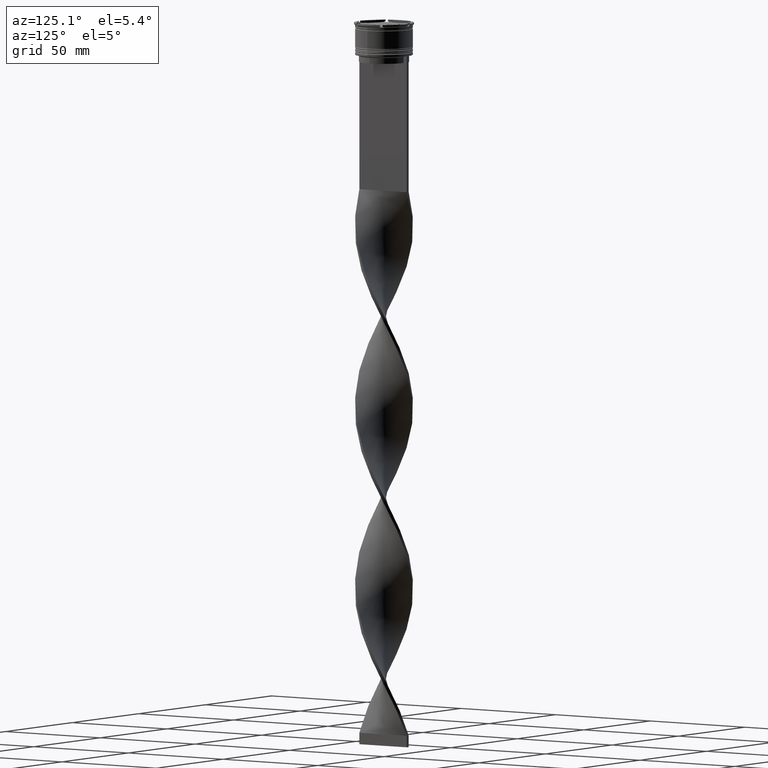
[diagram: clean part render]
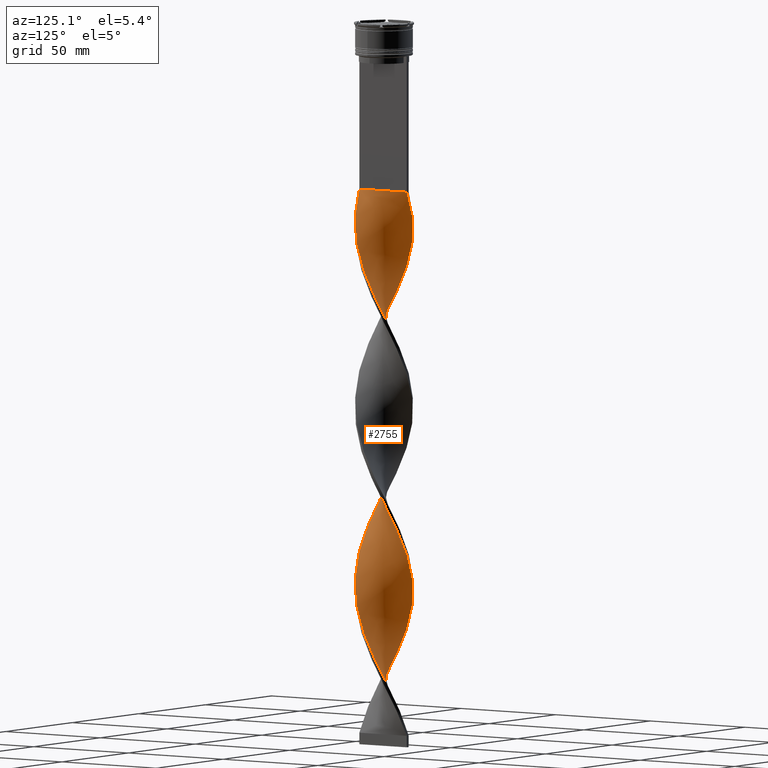
[diagram: same view with one face highlighted and labeled with its STEP entity id]
A machine part, auxiliary view. The second image highlights one B-rep face of the part: STEP entity #2755.
In plain terms, the highlighted face is a freeform B-spline surface patch.
Its self-contained STEP definition (entity closure, byte-faithful):
#15 = CARTESIAN_POINT ( 'NONE',  ( 4.103282305125623530, 11.87210446662093588, -141.8333333333333428 ) ) ;
#17 = CARTESIAN_POINT ( 'NONE',  ( -0.7500000000000017764, -12.50000000000000000, -309.0000000000000000 ) ) ;
#40 = CARTESIAN_POINT ( 'NONE',  ( 10.55355136890620038, -6.740552907874703514, -253.9333333333333371 ) ) ;
#42 = CARTESIAN_POINT ( 'NONE',  ( 11.08404438769758293, -5.909970402080499063, -98.56666666666669130 ) ) ;
#47 = CARTESIAN_POINT ( 'NONE',  ( -10.79708867754993840, 6.343136139885611868, -100.5333333333333314 ) ) ;
#57 = CARTESIAN_POINT ( 'NONE',  ( 10.29787303672002352, 7.192885447545553923, -283.4333333333333940 ) ) ;
#59 = CARTESIAN_POINT ( 'NONE',  ( -5.909970402080497287, 11.08404438769758293, -244.0999999999999659 ) ) ;
#65 = CARTESIAN_POINT ( 'NONE',  ( -5.909970402080498175, 11.08404438769758293, -86.76666666666666572 ) ) ;
#78 = CARTESIAN_POINT ( 'NONE',  ( -12.01658309743656083, 3.658622801590749596, -263.7666666666667652 ) ) ;
#87 = CARTESIAN_POINT ( 'NONE',  ( -1.214664557556532465, 12.46343010621939484, -76.93333333333333712 ) ) ;
#104 = CARTESIAN_POINT ( 'NONE',  ( 10.02305835011481605, -7.571135413668910630, -251.9666666666666686 ) ) ;
#106 = CARTESIAN_POINT ( 'NONE',  ( 7.571135413668911518, 10.02305835011481605, -133.9666666666666686 ) ) ;
#114 = CARTESIAN_POINT ( 'NONE',  ( 12.01658309743656261, -3.658622801590745155, -185.0999999999999943 ) ) ;
#125 = CARTESIAN_POINT ( 'NONE',  ( -5.909970402080496399, -11.08404438769758293, -216.5666666666666629 ) ) ;
#127 = CARTESIAN_POINT ( 'NONE',  ( -5.909970402080495511, -11.08404438769758293, -216.5666666666666629 ) ) ;
#131 = EDGE_CURVE ( 'NONE', #1029, #1816, #2159, .T. ) ;
#135 = CARTESIAN_POINT ( 'NONE',  ( 2.696197068449242007, 12.22877840865904808, -226.3999999999999773 ) ) ;
#146 = CARTESIAN_POINT ( 'NONE',  ( -10.79708867754994017, -6.343136139885609204, -202.8000000000000114 ) ) ;
#154 = CARTESIAN_POINT ( 'NONE',  ( 0.2337713353077288947, -12.55902628011846645, -153.6333333333333826 ) ) ;
#170 = CARTESIAN_POINT ( 'NONE',  ( 9.045873944214958939, 8.715271351328699012, -130.0333333333333314 ) ) ;
#181 = CARTESIAN_POINT ( 'NONE',  ( 3.149420042465475689, -12.11996919947063311, -159.5333333333333314 ) ) ;
#193 = CARTESIAN_POINT ( 'NONE',  ( -9.671873490467490342, -7.954078399437122471, -206.7333333333333201 ) ) ;
#199 = CARTESIAN_POINT ( 'NONE',  ( -12.22877840865904986, 2.696197068449240231, -108.3999999999999915 ) ) ;
#201 = CARTESIAN_POINT ( 'NONE',  ( -0.7500000000000017764, -12.50000000000000000, -151.6666666666666856 ) ) ;
#220 = CARTESIAN_POINT ( 'NONE',  ( 4.576004816908211481, 11.65644370790820794, -222.4666666666666686 ) ) ;
#222 = CARTESIAN_POINT ( 'NONE',  ( -0.7500000000000017764, -12.50000000000000000, -309.0000000000000000 ) ) ;
#238 = CARTESIAN_POINT ( 'NONE',  ( 10.29787303672002530, 7.192885447545554811, -283.4333333333333940 ) ) ;
#245 = CARTESIAN_POINT ( 'NONE',  ( -10.02305835011481605, -7.571135413668909742, -130.0333333333333314 ) ) ;
#248 = CARTESIAN_POINT ( 'NONE',  ( -1.733771335307732864, -12.44097371988153711, -307.0333333333333030 ) ) ;
#261 = CARTESIAN_POINT ( 'NONE',  ( 1.214664557556534019, 12.46343010621939307, -305.0666666666666629 ) ) ;
#264 = CARTESIAN_POINT ( 'NONE',  ( -8.715271351328699012, 9.045873944214960716, -169.3666666666667027 ) ) ;
#266 = CARTESIAN_POINT ( 'NONE',  ( 10.79708867754993840, -6.343136139885612756, -179.1999999999999886 ) ) ;
#279 = CARTESIAN_POINT ( 'NONE',  ( 10.02305835011481605, -7.571135413668909742, -251.9666666666666970 ) ) ;
#282 = CARTESIAN_POINT ( 'NONE',  ( 9.671873490467490342, 7.954078399437124247, -128.0666666666666629 ) ) ;
#284 = CARTESIAN_POINT ( 'NONE',  ( 12.01658309743656261, -3.658622801590745155, -185.0999999999999659 ) ) ;
#304 = CARTESIAN_POINT ( 'NONE',  ( 11.47807442715925852, -5.006626353603059520, -100.5333333333333314 ) ) ;
#307 = CARTESIAN_POINT ( 'NONE',  ( -2.195557779805334508, 12.36783393232032502, -236.2333333333333769 ) ) ;
#310 = CARTESIAN_POINT ( 'NONE',  ( -11.08404438769758293, -5.909970402080498175, -283.4333333333333940 ) ) ;
#329 = CARTESIAN_POINT ( 'NONE',  ( -6.343136139885609204, 10.79708867754994017, -163.4666666666666401 ) ) ;
#331 = CARTESIAN_POINT ( 'NONE',  ( 11.65644370790820972, 4.576004816908207928, -120.2000000000000028 ) ) ;
#348 = CARTESIAN_POINT ( 'NONE',  ( 7.192885447545553923, -10.29787303672002352, -86.76666666666666572 ) ) ;
#350 = CARTESIAN_POINT ( 'NONE',  ( -12.11996919947063311, -3.149420042465476577, -277.5333333333333030 ) ) ;
#368 = CARTESIAN_POINT ( 'NONE',  ( 6.343136139885610980, -10.79708867754994017, -242.1333333333333258 ) ) ;
#372 = CARTESIAN_POINT ( 'NONE',  ( -5.006626353603058632, 11.47807442715926030, -242.1333333333333258 ) ) ;
#380 = CARTESIAN_POINT ( 'NONE',  ( -8.308504678941934785, 9.369164850721755755, -92.66666666666667140 ) ) ;
#395 = CARTESIAN_POINT ( 'NONE',  ( 2.696197068449239787, -12.22877840865904986, -234.2666666666666515 ) ) ;
#397 = CARTESIAN_POINT ( 'NONE',  ( 12.50000000000000000, 0.7499999999999994449, -112.3333333333333428 ) ) ;
#403 = CARTESIAN_POINT ( 'NONE',  ( -11.08404438769758293, -5.909970402080498175, -126.1000000000000227 ) ) ;
#413 = CARTESIAN_POINT ( 'NONE',  ( -0.7499999999999986677, 12.50000000000000000, -309.0000000000000000 ) ) ;
#416 = CARTESIAN_POINT ( 'NONE',  ( 10.79708867754994017, 6.343136139885610980, -124.1333333333333400 ) ) ;
#422 = CARTESIAN_POINT ( 'NONE',  ( -4.103282305125622642, 11.87210446662093588, -82.83333333333335702 ) ) ;
#434 = CARTESIAN_POINT ( 'NONE',  ( -0.2337713353077390810, -12.55902628011846822, -228.3666666666666742 ) ) ;
#436 = CARTESIAN_POINT ( 'NONE',  ( -3.149420042465480574, -12.11996919947063134, -222.4666666666666686 ) ) ;
#446 = CARTESIAN_POINT ( 'NONE',  ( -3.658622801590750040, -12.01658309743656083, -145.7666666666666515 ) ) ;
#464 = CARTESIAN_POINT ( 'NONE',  ( -11.87210446662093410, 4.103282305125628859, -181.1666666666667140 ) ) ;
#471 = CARTESIAN_POINT ( 'NONE',  ( 4.576004816908211481, 11.65644370790820794, -222.4666666666666686 ) ) ;
#482 = CARTESIAN_POINT ( 'NONE',  ( 3.658622801590748708, -12.01658309743656083, -236.2333333333333769 ) ) ;
#489 = CARTESIAN_POINT ( 'NONE',  ( 6.740552907874702626, -10.55355136890619860, -167.4000000000000057 ) ) ;
#501 = CARTESIAN_POINT ( 'NONE',  ( -12.36783393232032680, 2.195557779805332288, -185.0999999999999659 ) ) ;
#512 = CARTESIAN_POINT ( 'NONE',  ( 2.195557779805333620, -12.36783393232032680, -157.5666666666666913 ) ) ;
#530 = CARTESIAN_POINT ( 'NONE',  ( -8.308504678941934785, -9.369164850721752202, -210.6666666666666572 ) ) ;
#538 = CARTESIAN_POINT ( 'NONE',  ( -10.79708867754993840, 6.343136139885611868, -100.5333333333333314 ) ) ;
#540 = CARTESIAN_POINT ( 'NONE',  ( -5.006626353603058632, 11.47807442715926030, -242.1333333333333258 ) ) ;
#553 = CARTESIAN_POINT ( 'NONE',  ( 12.11996919947063134, -3.149420042465478353, -261.7999999999999545 ) ) ;
#557 = CARTESIAN_POINT ( 'NONE',  ( 0.7500000000000002220, -12.50000000000000000, -73.00000000000001421 ) ) ;
#561 = CARTESIAN_POINT ( 'NONE',  ( -12.11996919947063311, -3.149420042465476577, -277.5333333333333030 ) ) ;
#563 =( BOUNDED_CURVE ( )  B_SPLINE_CURVE ( 2, ( #2109, #4237, #87, #1750, #718, #422, #3151, #65, #3509, #2808, #380, #783, #1775, #3174, #47, #1431, #1109, #3898, #1384, #2828, #2493, #762, #742, #2154, #3532, #2538, #2874, #403, #1813, #1132, #3917, #2192, #1728, #1496, #3243, #3991, #3307, #446, #2966, #3573, #201, #154, #4349, #512, #181, #3939, #2895, #1223, #489, #1841, #4281, #1912, #1889, #3643, #2946, #2611, #877, #114, #855, #1153, #808, #2589, #2559, #1542, #4011, #4329, #835, #2218, #2917, #3601, #1246, #1568, #2649, #2631, #2987, #2263, #471, #2289, #135, #1937, #3969, #3672, #2242, #1202, #4368, #1867, #540, #3282, #3330, #3264, #1516, #1588, #4038, #4303, #1177, #3621, #903, #4061, #1342, #3080, #3010, #2333, #1610, #2673, #561, #972, #1315, #310, #1679, #1959, #923, #3419, #648, #3713, #1638, #4131, #583, #2032, #1294, #248, #222 ),
 .UNSPECIFIED., .F., .T. ) 
 B_SPLINE_CURVE_WITH_KNOTS ( ( 3, 2, 2, 2, 2, 2, 2, 2, 2, 2, 2, 2, 2, 2, 2, 2, 2, 2, 2, 2, 2, 2, 2, 2, 2, 2, 2, 2, 2, 2, 2, 2, 2, 2, 2, 2, 2, 2, 2, 2, 2, 2, 2, 2, 2, 2, 2, 2, 2, 2, 2, 2, 2, 2, 2, 2, 2, 2, 2, 2, 3 ),
 ( 0.000000000000000000, 0.01250000000000000243, 0.02500000000000000486, 0.03749999999999999861, 0.05000000000000000971, 0.06250000000000000000, 0.07499999999999999722, 0.08749999999999998057, 0.1000000000000000194, 0.1125000000000000028, 0.1250000000000000000, 0.1375000000000000111, 0.1499999999999999944, 0.1625000000000000056, 0.1749999999999999611, 0.1875000000000000000, 0.2000000000000000389, 0.2124999999999999944, 0.2250000000000000056, 0.2374999999999999611, 0.2500000000000000000, 0.2625000000000000111, 0.2750000000000000222, 0.2874999999999999778, 0.2999999999999999889, 0.3125000000000000000, 0.3250000000000000111, 0.3375000000000000777, 0.3499999999999999223, 0.3624999999999999889, 0.3750000000000000000, 0.3875000000000000111, 0.4000000000000000777, 0.4124999999999999223, 0.4249999999999999889, 0.4375000000000000000, 0.4500000000000000111, 0.4625000000000000777, 0.4749999999999999223, 0.4874999999999999889, 0.5000000000000000000, 0.5124999999999999556, 0.5250000000000000222, 0.5374999999999999778, 0.5500000000000000444, 0.5625000000000000000, 0.5749999999999999556, 0.5875000000000000222, 0.5999999999999999778, 0.6125000000000000444, 0.6250000000000000000, 0.6374999999999999556, 0.6500000000000000222, 0.6624999999999999778, 0.6750000000000001554, 0.6875000000000000000, 0.6999999999999998446, 0.7125000000000000222, 0.7249999999999999778, 0.7375000000000001554, 0.7500000000000000000 ),
 .UNSPECIFIED. ) 
 CURVE ( )  GEOMETRIC_REPRESENTATION_ITEM ( )  RATIONAL_B_SPLINE_CURVE ( ( 1.000000000000000000, 0.9969173337331279638, 1.000000000000000000, 0.9969173337331279638, 1.000000000000000000, 0.9969173337331279638, 1.000000000000000000, 0.9969173337331279638, 1.000000000000000000, 0.9969173337331279638, 1.000000000000000000, 0.9969173337331279638, 1.000000000000000000, 0.9969173337331279638, 1.000000000000000000, 0.9969173337331279638, 1.000000000000000000, 0.9969173337331279638, 1.000000000000000000, 0.9969173337331279638, 1.000000000000000000, 0.9969173337331279638, 1.000000000000000000, 0.9969173337331279638, 1.000000000000000000, 0.9969173337331279638, 1.000000000000000000, 0.9969173337331279638, 1.000000000000000000, 0.9969173337331279638, 1.000000000000000000, 0.9969173337331279638, 1.000000000000000000, 0.9969173337331279638, 1.000000000000000000, 0.9969173337331279638, 1.000000000000000000, 0.9969173337331279638, 1.000000000000000000, 0.9969173337331279638, 1.000000000000000000, 0.9969173337331279638, 1.000000000000000000, 0.9969173337331279638, 1.000000000000000000, 0.9969173337331279638, 1.000000000000000000, 0.9969173337331279638, 1.000000000000000000, 0.9969173337331279638, 1.000000000000000000, 0.9969173337331279638, 1.000000000000000000, 0.9969173337331279638, 1.000000000000000000, 0.9969173337331279638, 1.000000000000000000, 0.9969173337331279638, 1.000000000000000000, 0.9969173337331279638, 1.000000000000000000, 0.9969173337331279638, 1.000000000000000000, 0.9969173337331279638, 1.000000000000000000, 0.9969173337331279638, 1.000000000000000000, 0.9969173337331279638, 1.000000000000000000, 0.9969173337331279638, 1.000000000000000000, 0.9969173337331279638, 1.000000000000000000, 0.9969173337331279638, 1.000000000000000000, 0.9969173337331279638, 1.000000000000000000, 0.9969173337331279638, 1.000000000000000000, 0.9969173337331279638, 1.000000000000000000, 0.9969173337331279638, 1.000000000000000000, 0.9969173337331279638, 1.000000000000000000, 0.9969173337331279638, 1.000000000000000000, 0.9969173337331279638, 1.000000000000000000, 0.9969173337331279638, 1.000000000000000000, 0.9969173337331279638, 1.000000000000000000, 0.9969173337331279638, 1.000000000000000000, 0.9969173337331279638, 1.000000000000000000, 0.9969173337331279638, 1.000000000000000000, 0.9969173337331279638, 1.000000000000000000, 0.9969173337331279638, 1.000000000000000000, 0.9969173337331279638, 1.000000000000000000, 0.9969173337331279638, 1.000000000000000000, 0.9969173337331279638, 1.000000000000000000, 0.9969173337331279638, 1.000000000000000000, 0.9969173337331279638, 1.000000000000000000, 0.9969173337331279638, 1.000000000000000000, 0.9969173337331279638, 1.000000000000000000, 0.9969173337331279638, 1.000000000000000000, 0.9969173337331279638, 1.000000000000000000 ) ) 
 REPRESENTATION_ITEM ( '' )  );
#574 = CARTESIAN_POINT ( 'NONE',  ( 12.36783393232032502, -2.195557779805335397, -263.7666666666667652 ) ) ;
#580 = CARTESIAN_POINT ( 'NONE',  ( -8.715271351328700788, -9.045873944214958939, -133.9666666666666686 ) ) ;
#583 = CARTESIAN_POINT ( 'NONE',  ( -4.576004816908209705, -11.65644370790820794, -301.1333333333333258 ) ) ;
#600 = CARTESIAN_POINT ( 'NONE',  ( 11.29630431837985682, 5.493386832225668037, -279.4999999999999432 ) ) ;
#606 = CARTESIAN_POINT ( 'NONE',  ( 3.149420042465479241, 12.11996919947063134, -143.7999999999999829 ) ) ;
#609 = CARTESIAN_POINT ( 'NONE',  ( -5.493386832225669814, -11.29630431837985682, -141.8333333333333144 ) ) ;
#624 = CARTESIAN_POINT ( 'NONE',  ( -0.7499999999999986677, 12.50000000000000000, -151.6666666666666856 ) ) ;
#627 = CARTESIAN_POINT ( 'NONE',  ( -11.08404438769758293, -5.909970402080497287, -126.1000000000000369 ) ) ;
#644 = CARTESIAN_POINT ( 'NONE',  ( 12.01658309743656261, 3.658622801590747819, -118.2333333333333485 ) ) ;
#646 = CARTESIAN_POINT ( 'NONE',  ( 7.571135413668908853, -10.02305835011481783, -169.3666666666667027 ) ) ;
#648 = CARTESIAN_POINT ( 'NONE',  ( -7.954078399437126912, -9.671873490467486789, -293.2666666666666515 ) ) ;
#657 = CARTESIAN_POINT ( 'NONE',  ( 0.7500000000000002220, -12.50000000000000000, -73.00000000000001421 ) ) ;
#666 = CARTESIAN_POINT ( 'NONE',  ( 12.55902628011846645, -0.2337713353077312817, -110.3666666666666742 ) ) ;
#669 = CARTESIAN_POINT ( 'NONE',  ( 12.22877840865904808, -2.696197068449241119, -187.0666666666666629 ) ) ;
#690 = CARTESIAN_POINT ( 'NONE',  ( -1.733771335307729533, 12.44097371988153711, -153.6333333333333826 ) ) ;
#692 = CARTESIAN_POINT ( 'NONE',  ( 3.658622801590748708, -12.01658309743656083, -78.90000000000003411 ) ) ;
#710 = CARTESIAN_POINT ( 'NONE',  ( 0.2337713353077321421, 12.55902628011846645, -307.0333333333333030 ) ) ;
#712 = CARTESIAN_POINT ( 'NONE',  ( 8.715271351328699012, -9.045873944214958939, -90.70000000000001705 ) ) ;
#718 = CARTESIAN_POINT ( 'NONE',  ( -3.149420042465477465, 12.11996919947063134, -80.86666666666667425 ) ) ;
#722 = ORIENTED_EDGE ( 'NONE', *, *, #4307, .F. ) ;
#731 = CARTESIAN_POINT ( 'NONE',  ( 12.11996919947063134, -3.149420042465478353, -261.7999999999999545 ) ) ;
#735 = CARTESIAN_POINT ( 'NONE',  ( -6.740552907874703514, 10.55355136890620038, -246.0666666666666629 ) ) ;
#742 = CARTESIAN_POINT ( 'NONE',  ( -12.46343010621939484, -1.214664557556531577, -116.2666666666666657 ) ) ;
#754 = CARTESIAN_POINT ( 'NONE',  ( 12.44097371988153711, 1.733771335307730199, -271.6333333333332689 ) ) ;
#756 = CARTESIAN_POINT ( 'NONE',  ( -10.29787303672002174, 7.192885447545556588, -255.9000000000000909 ) ) ;
#762 = CARTESIAN_POINT ( 'NONE',  ( -12.55902628011846645, -0.2337713353077295608, -114.3000000000000256 ) ) ;
#776 = CARTESIAN_POINT ( 'NONE',  ( 5.493386832225668925, -11.29630431837985682, -82.83333333333335702 ) ) ;
#783 = CARTESIAN_POINT ( 'NONE',  ( -9.045873944214958939, 8.715271351328699012, -94.63333333333335418 ) ) ;
#795 = CARTESIAN_POINT ( 'NONE',  ( -7.571135413668918623, -10.02305835011481072, -212.6333333333333826 ) ) ;
#798 = CARTESIAN_POINT ( 'NONE',  ( -4.576004816908207040, 11.65644370790820972, -159.5333333333333314 ) ) ;
#808 = CARTESIAN_POINT ( 'NONE',  ( 12.50000000000000000, -0.7500000000000025535, -191.0000000000000000 ) ) ;
#827 = CARTESIAN_POINT ( 'NONE',  ( 6.343136139885610980, -10.79708867754994017, -242.1333333333333258 ) ) ;
#834 = CARTESIAN_POINT ( 'NONE',  ( -2.195557779805334508, 12.36783393232032502, -78.90000000000003411 ) ) ;
#835 = CARTESIAN_POINT ( 'NONE',  ( 11.47807442715926030, 5.006626353603056856, -202.8000000000000114 ) ) ;
#847 = CARTESIAN_POINT ( 'NONE',  ( 8.308504678941934785, 9.369164850721753979, -132.0000000000000000 ) ) ;
#853 = CARTESIAN_POINT ( 'NONE',  ( -12.01658309743656083, 3.658622801590749596, -106.4333333333333513 ) ) ;
#855 = CARTESIAN_POINT ( 'NONE',  ( 12.22877840865904808, -2.696197068449241119, -187.0666666666666629 ) ) ;
#866 = CARTESIAN_POINT ( 'NONE',  ( -12.01658309743656439, -3.658622801590741158, -196.9000000000000057 ) ) ;
#875 = CARTESIAN_POINT ( 'NONE',  ( -10.29787303672002174, 7.192885447545556588, -98.56666666666669130 ) ) ;
#877 = CARTESIAN_POINT ( 'NONE',  ( 11.65644370790820794, -4.576004816908210593, -183.1333333333333258 ) ) ;
#893 = CARTESIAN_POINT ( 'NONE',  ( 10.55355136890620038, -6.740552907874703514, -253.9333333333333371 ) ) ;
#896 = CARTESIAN_POINT ( 'NONE',  ( -0.7500000000000017764, -12.50000000000000000, -309.0000000000000000 ) ) ;
#903 = CARTESIAN_POINT ( 'NONE',  ( -11.65644370790820794, 4.576004816908208817, -261.7999999999999545 ) ) ;
#914 = CARTESIAN_POINT ( 'NONE',  ( 11.47807442715925852, -5.006626353603059520, -257.8666666666666742 ) ) ;
#921 = CARTESIAN_POINT ( 'NONE',  ( -7.192885447545556588, -10.29787303672002174, -137.9000000000000625 ) ) ;
#923 = CARTESIAN_POINT ( 'NONE',  ( -9.369164850721755755, -8.308504678941933008, -289.3333333333333144 ) ) ;
#936 = CARTESIAN_POINT ( 'NONE',  ( 5.909970402080499063, 11.08404438769758293, -295.2333333333332916 ) ) ;
#941 = CARTESIAN_POINT ( 'NONE',  ( -10.55355136890619860, -6.740552907874702626, -128.0666666666666629 ) ) ;
#967 = CARTESIAN_POINT ( 'NONE',  ( -12.36783393232032680, 2.195557779805331844, -185.0999999999999943 ) ) ;
#970 = CARTESIAN_POINT ( 'NONE',  ( 12.44097371988153533, -1.733771335307738859, -189.0333333333333314 ) ) ;
#972 = CARTESIAN_POINT ( 'NONE',  ( -11.87210446662093588, -4.103282305125621754, -279.4999999999999432 ) ) ;
#989 = CARTESIAN_POINT ( 'NONE',  ( 12.36783393232032502, -2.195557779805335841, -106.4333333333333513 ) ) ;
#992 = CARTESIAN_POINT ( 'NONE',  ( 1.733771335307739747, 12.44097371988153533, -228.3666666666666458 ) ) ;
#993 = EDGE_LOOP ( 'NONE', ( #2930, #4120, #722, #4298 ) ) ;
#1007 = CARTESIAN_POINT ( 'NONE',  ( 5.006626353603060409, 11.47807442715925852, -139.8666666666666742 ) ) ;
#1009 = CARTESIAN_POINT ( 'NONE',  ( -1.733771335307732864, -12.44097371988153711, -149.7000000000000455 ) ) ;
#1029 = VERTEX_POINT ( 'NONE', #657 ) ;
#1032 = CARTESIAN_POINT ( 'NONE',  ( 8.308504678941934785, 9.369164850721753979, -132.0000000000000000 ) ) ;
#1035 = CARTESIAN_POINT ( 'NONE',  ( -2.696197068449241119, -12.22877840865904808, -305.0666666666666629 ) ) ;
#1057 = CARTESIAN_POINT ( 'NONE',  ( -7.192885447545552147, 10.29787303672002352, -165.4333333333333371 ) ) ;
#1058 =( BOUNDED_CURVE ( )  B_SPLINE_CURVE ( 2, ( #557, #1955, #3434, #2735, #3074, #2417, #4144, #348, #4480, #1699, #2397, #1375, #4127, #2005, #304, #4165, #3102, #989, #3395, #666, #3052, #2078, #3775, #644, #3139, #2049, #4190, #4432, #282, #2773, #1032, #1358, #2442, #2753, #1007, #15, #606, #3825, #3797, #3460, #624, #690, #2101, #1400, #2799, #3480, #329, #1057, #1720, #264, #3121, #4457, #3757, #1310, #4104, #1654, #2711, #967, #4498, #2378, #1740, #2028, #3735, #1337, #3415, #1674, #1856, #4249, #1423, #3231, #3522, #795, #2840, #125, #2205, #1077, #3888, #3563, #1123, #434, #2182, #3864, #395, #2885, #3253, #3164, #368, #4227, #2120, #4208, #1485, #104, #40, #3496, #2819, #2550, #731, #1763, #3186, #1506, #1785, #754, #3589, #2906, #2485, #3206, #2144, #57, #1442, #1098, #4295, #2507, #2164, #3543, #1463, #2466, #3846, #1829, #2529, #710, #413 ),
 .UNSPECIFIED., .F., .F. ) 
 B_SPLINE_CURVE_WITH_KNOTS ( ( 3, 2, 2, 2, 2, 2, 2, 2, 2, 2, 2, 2, 2, 2, 2, 2, 2, 2, 2, 2, 2, 2, 2, 2, 2, 2, 2, 2, 2, 2, 2, 2, 2, 2, 2, 2, 2, 2, 2, 2, 2, 2, 2, 2, 2, 2, 2, 2, 2, 2, 2, 2, 2, 2, 2, 2, 2, 2, 2, 2, 3 ),
 ( 0.000000000000000000, 0.01250000000000000243, 0.02500000000000000486, 0.03749999999999999861, 0.05000000000000000971, 0.06250000000000000000, 0.07499999999999999722, 0.08749999999999998057, 0.1000000000000000194, 0.1125000000000000028, 0.1250000000000000000, 0.1375000000000000111, 0.1499999999999999944, 0.1625000000000000056, 0.1749999999999999611, 0.1875000000000000000, 0.2000000000000000389, 0.2124999999999999944, 0.2250000000000000056, 0.2374999999999999611, 0.2500000000000000000, 0.2625000000000000111, 0.2750000000000000222, 0.2874999999999999778, 0.2999999999999999889, 0.3125000000000000000, 0.3250000000000000111, 0.3375000000000000777, 0.3499999999999999223, 0.3624999999999999889, 0.3750000000000000000, 0.3875000000000000111, 0.4000000000000000777, 0.4124999999999999223, 0.4249999999999999889, 0.4375000000000000000, 0.4500000000000000111, 0.4625000000000000777, 0.4749999999999999223, 0.4874999999999999889, 0.5000000000000000000, 0.5124999999999999556, 0.5250000000000000222, 0.5374999999999999778, 0.5500000000000000444, 0.5625000000000000000, 0.5749999999999999556, 0.5875000000000000222, 0.5999999999999999778, 0.6125000000000000444, 0.6250000000000000000, 0.6374999999999999556, 0.6500000000000000222, 0.6624999999999999778, 0.6750000000000001554, 0.6875000000000000000, 0.6999999999999998446, 0.7125000000000000222, 0.7249999999999999778, 0.7375000000000001554, 0.7500000000000000000 ),
 .UNSPECIFIED. ) 
 CURVE ( )  GEOMETRIC_REPRESENTATION_ITEM ( )  RATIONAL_B_SPLINE_CURVE ( ( 1.000000000000000000, 0.9969173337331279638, 1.000000000000000000, 0.9969173337331279638, 1.000000000000000000, 0.9969173337331279638, 1.000000000000000000, 0.9969173337331279638, 1.000000000000000000, 0.9969173337331279638, 1.000000000000000000, 0.9969173337331279638, 1.000000000000000000, 0.9969173337331279638, 1.000000000000000000, 0.9969173337331279638, 1.000000000000000000, 0.9969173337331279638, 1.000000000000000000, 0.9969173337331279638, 1.000000000000000000, 0.9969173337331279638, 1.000000000000000000, 0.9969173337331279638, 1.000000000000000000, 0.9969173337331279638, 1.000000000000000000, 0.9969173337331279638, 1.000000000000000000, 0.9969173337331279638, 1.000000000000000000, 0.9969173337331279638, 1.000000000000000000, 0.9969173337331279638, 1.000000000000000000, 0.9969173337331279638, 1.000000000000000000, 0.9969173337331279638, 1.000000000000000000, 0.9969173337331279638, 1.000000000000000000, 0.9969173337331279638, 1.000000000000000000, 0.9969173337331279638, 1.000000000000000000, 0.9969173337331279638, 1.000000000000000000, 0.9969173337331279638, 1.000000000000000000, 0.9969173337331279638, 1.000000000000000000, 0.9969173337331279638, 1.000000000000000000, 0.9969173337331279638, 1.000000000000000000, 0.9969173337331279638, 1.000000000000000000, 0.9969173337331279638, 1.000000000000000000, 0.9969173337331279638, 1.000000000000000000, 0.9969173337331279638, 1.000000000000000000, 0.9969173337331279638, 1.000000000000000000, 0.9969173337331279638, 1.000000000000000000, 0.9969173337331279638, 1.000000000000000000, 0.9969173337331279638, 1.000000000000000000, 0.9969173337331279638, 1.000000000000000000, 0.9969173337331279638, 1.000000000000000000, 0.9969173337331279638, 1.000000000000000000, 0.9969173337331279638, 1.000000000000000000, 0.9969173337331279638, 1.000000000000000000, 0.9969173337331279638, 1.000000000000000000, 0.9969173337331279638, 1.000000000000000000, 0.9969173337331279638, 1.000000000000000000, 0.9969173337331279638, 1.000000000000000000, 0.9969173337331279638, 1.000000000000000000, 0.9969173337331279638, 1.000000000000000000, 0.9969173337331279638, 1.000000000000000000, 0.9969173337331279638, 1.000000000000000000, 0.9969173337331279638, 1.000000000000000000, 0.9969173337331279638, 1.000000000000000000, 0.9969173337331279638, 1.000000000000000000, 0.9969173337331279638, 1.000000000000000000, 0.9969173337331279638, 1.000000000000000000, 0.9969173337331279638, 1.000000000000000000, 0.9969173337331279638, 1.000000000000000000, 0.9969173337331279638, 1.000000000000000000, 0.9969173337331279638, 1.000000000000000000, 0.9969173337331279638, 1.000000000000000000, 0.9969173337331279638, 1.000000000000000000, 0.9969173337331279638, 1.000000000000000000 ) ) 
 REPRESENTATION_ITEM ( '' )  );
#1060 = CARTESIAN_POINT ( 'NONE',  ( -1.733771335307732864, -12.44097371988153711, -307.0333333333333030 ) ) ;
#1077 = CARTESIAN_POINT ( 'NONE',  ( -4.103282305125630636, -11.87210446662093410, -220.5000000000000284 ) ) ;
#1079 = CARTESIAN_POINT ( 'NONE',  ( 12.36783393232032502, -2.195557779805335397, -106.4333333333333513 ) ) ;
#1098 = CARTESIAN_POINT ( 'NONE',  ( 9.045873944214958939, 8.715271351328699012, -287.3666666666667311 ) ) ;
#1101 = CARTESIAN_POINT ( 'NONE',  ( 9.369164850721755755, -8.308504678941934785, -92.66666666666667140 ) ) ;
#1109 = CARTESIAN_POINT ( 'NONE',  ( -11.65644370790820794, 4.576004816908208817, -104.4666666666666828 ) ) ;
#1123 = CARTESIAN_POINT ( 'NONE',  ( -1.214664557556535351, -12.46343010621939307, -226.3999999999999773 ) ) ;
#1125 = CARTESIAN_POINT ( 'NONE',  ( -11.29630431837985682, 5.493386832225669814, -259.8333333333334281 ) ) ;
#1132 = CARTESIAN_POINT ( 'NONE',  ( -10.02305835011481605, -7.571135413668910630, -130.0333333333333314 ) ) ;
#1145 = CARTESIAN_POINT ( 'NONE',  ( 3.149420042465479241, 12.11996919947063134, -143.7999999999999829 ) ) ;
#1153 = CARTESIAN_POINT ( 'NONE',  ( 12.44097371988153533, -1.733771335307738859, -189.0333333333333314 ) ) ;
#1168 = CARTESIAN_POINT ( 'NONE',  ( -2.195557779805333176, -12.36783393232032680, -224.4333333333333655 ) ) ;
#1176 = CARTESIAN_POINT ( 'NONE',  ( -0.2337713353077304212, 12.55902628011846645, -74.96666666666668277 ) ) ;
#1177 = CARTESIAN_POINT ( 'NONE',  ( -10.79708867754993840, 6.343136139885611868, -257.8666666666666742 ) ) ;
#1195 = CARTESIAN_POINT ( 'NONE',  ( -8.715271351328699012, 9.045873944214960716, -169.3666666666667027 ) ) ;
#1201 = CARTESIAN_POINT ( 'NONE',  ( -8.308504678941934785, 9.369164850721755755, -92.66666666666667140 ) ) ;
#1202 = CARTESIAN_POINT ( 'NONE',  ( -2.195557779805334508, 12.36783393232032502, -236.2333333333333485 ) ) ;
#1215 = CARTESIAN_POINT ( 'NONE',  ( 1.733771335307731087, -12.44097371988153711, -232.3000000000000114 ) ) ;
#1222 = CARTESIAN_POINT ( 'NONE',  ( -1.214664557556532465, 12.46343010621939484, -76.93333333333333712 ) ) ;
#1223 = CARTESIAN_POINT ( 'NONE',  ( 5.909970402080496399, -11.08404438769758293, -165.4333333333333371 ) ) ;
#1235 = CARTESIAN_POINT ( 'NONE',  ( -9.045873944214957163, -8.715271351328702565, -208.7000000000000171 ) ) ;
#1246 = CARTESIAN_POINT ( 'NONE',  ( 9.369164850721755755, 8.308504678941931232, -210.6666666666666572 ) ) ;
#1272 = CARTESIAN_POINT ( 'NONE',  ( -6.343136139885612756, -10.79708867754993840, -139.8666666666666742 ) ) ;
#1287 = CARTESIAN_POINT ( 'NONE',  ( 12.01658309743656261, 3.658622801590747819, -275.5666666666666060 ) ) ;
#1292 = CARTESIAN_POINT ( 'NONE',  ( 8.715271351328704341, 9.045873944214953610, -212.6333333333333826 ) ) ;
#1294 = CARTESIAN_POINT ( 'NONE',  ( -2.696197068449241119, -12.22877840865904808, -305.0666666666666629 ) ) ;
#1307 = CARTESIAN_POINT ( 'NONE',  ( 12.46343010621939484, -1.214664557556532909, -265.7333333333333485 ) ) ;
#1310 = CARTESIAN_POINT ( 'NONE',  ( -11.08404438769758471, 5.909970402080495511, -177.2333333333333485 ) ) ;
#1312 = CARTESIAN_POINT ( 'NONE',  ( 10.29787303672002707, -7.192885447545552147, -177.2333333333333485 ) ) ;
#1315 = CARTESIAN_POINT ( 'NONE',  ( -11.47807442715926030, -5.006626353603058632, -281.4666666666666401 ) ) ;
#1333 = CARTESIAN_POINT ( 'NONE',  ( 12.44097371988153711, 1.733771335307730199, -271.6333333333332689 ) ) ;
#1337 = CARTESIAN_POINT ( 'NONE',  ( -12.01658309743656439, -3.658622801590741158, -196.9000000000000057 ) ) ;
#1339 = CARTESIAN_POINT ( 'NONE',  ( 3.658622801590746043, 12.01658309743656261, -224.4333333333333655 ) ) ;
#1342 = CARTESIAN_POINT ( 'NONE',  ( -12.22877840865904986, 2.696197068449240231, -265.7333333333333485 ) ) ;
#1358 = CARTESIAN_POINT ( 'NONE',  ( 7.571135413668912406, 10.02305835011481605, -133.9666666666666686 ) ) ;
#1360 = CARTESIAN_POINT ( 'NONE',  ( 0.2337713353077288947, -12.55902628011846645, -153.6333333333333826 ) ) ;
#1375 = CARTESIAN_POINT ( 'NONE',  ( 10.02305835011481605, -7.571135413668910630, -94.63333333333335418 ) ) ;
#1378 = CARTESIAN_POINT ( 'NONE',  ( -8.715271351328700788, -9.045873944214958939, -291.3000000000000682 ) ) ;
#1384 = CARTESIAN_POINT ( 'NONE',  ( -12.22877840865904986, 2.696197068449240231, -108.3999999999999915 ) ) ;
#1400 = CARTESIAN_POINT ( 'NONE',  ( -3.658622801590746931, 12.01658309743656261, -157.5666666666666913 ) ) ;
#1403 = CARTESIAN_POINT ( 'NONE',  ( -9.671873490467488566, 7.954078399437126023, -253.9333333333333371 ) ) ;
#1417 = CARTESIAN_POINT ( 'NONE',  ( 0.7500000000000002220, -12.50000000000000000, -73.00000000000001421 ) ) ;
#1423 = CARTESIAN_POINT ( 'NONE',  ( -9.671873490467490342, -7.954078399437122471, -206.7333333333333201 ) ) ;
#1426 = CARTESIAN_POINT ( 'NONE',  ( 11.87210446662093588, -4.103282305125623530, -102.5000000000000000 ) ) ;
#1431 = CARTESIAN_POINT ( 'NONE',  ( -11.29630431837985682, 5.493386832225669814, -102.5000000000000142 ) ) ;
#1442 = CARTESIAN_POINT ( 'NONE',  ( 9.671873490467490342, 7.954078399437124247, -285.3999999999999773 ) ) ;
#1444 = CARTESIAN_POINT ( 'NONE',  ( -7.571135413668909742, 10.02305835011481605, -248.0333333333333314 ) ) ;
#1463 = CARTESIAN_POINT ( 'NONE',  ( 5.006626353603060409, 11.47807442715925852, -297.2000000000000455 ) ) ;
#1466 = CARTESIAN_POINT ( 'NONE',  ( -7.192885447545556588, -10.29787303672002174, -295.2333333333332916 ) ) ;
#1485 = CARTESIAN_POINT ( 'NONE',  ( 9.369164850721755755, -8.308504678941934785, -250.0000000000000000 ) ) ;
#1488 = CARTESIAN_POINT ( 'NONE',  ( 5.909970402080499063, 11.08404438769758293, -137.9000000000000625 ) ) ;
#1496 = CARTESIAN_POINT ( 'NONE',  ( -7.192885447545555699, -10.29787303672001997, -137.9000000000000625 ) ) ;
#1506 = CARTESIAN_POINT ( 'NONE',  ( 12.55902628011846645, -0.2337713353077312817, -267.6999999999999318 ) ) ;
#1508 = CARTESIAN_POINT ( 'NONE',  ( -6.343136139885609204, 10.79708867754994017, -163.4666666666666401 ) ) ;
#1516 = CARTESIAN_POINT ( 'NONE',  ( -8.308504678941934785, 9.369164850721755755, -250.0000000000000000 ) ) ;
#1533 = CARTESIAN_POINT ( 'NONE',  ( 9.671873490467490342, 7.954078399437124247, -128.0666666666666629 ) ) ;
#1541 = CARTESIAN_POINT ( 'NONE',  ( -6.740552907874703514, 10.55355136890620038, -88.73333333333334849 ) ) ;
#1542 = CARTESIAN_POINT ( 'NONE',  ( 12.36783393232032857, 2.195557779805326959, -196.9000000000000057 ) ) ;
#1561 = CARTESIAN_POINT ( 'NONE',  ( 2.195557779805335397, 12.36783393232032502, -145.7666666666666515 ) ) ;
#1568 = CARTESIAN_POINT ( 'NONE',  ( 8.715271351328704341, 9.045873944214953610, -212.6333333333333826 ) ) ;
#1581 = CARTESIAN_POINT ( 'NONE',  ( -5.493386832225668037, 11.29630431837985860, -161.5000000000000000 ) ) ;
#1586 = CARTESIAN_POINT ( 'NONE',  ( -12.44097371988153711, 1.733771335307731976, -110.3666666666666600 ) ) ;
#1588 = CARTESIAN_POINT ( 'NONE',  ( -9.045873944214958939, 8.715271351328699012, -251.9666666666666686 ) ) ;
#1601 = CARTESIAN_POINT ( 'NONE',  ( -0.7499999999999986677, 12.50000000000000000, -309.0000000000000000 ) ) ;
#1607 = CARTESIAN_POINT ( 'NONE',  ( -0.2337713353077304212, 12.55902628011846645, -232.3000000000000114 ) ) ;
#1610 = CARTESIAN_POINT ( 'NONE',  ( -12.46343010621939484, -1.214664557556531577, -273.5999999999999659 ) ) ;
#1636 = CARTESIAN_POINT ( 'NONE',  ( 1.214664557556530688, -12.46343010621939484, -155.6000000000000227 ) ) ;
#1638 = CARTESIAN_POINT ( 'NONE',  ( -6.343136139885612756, -10.79708867754993840, -297.2000000000000455 ) ) ;
#1650 = CARTESIAN_POINT ( 'NONE',  ( 7.571135413668911518, 10.02305835011481605, -291.3000000000000682 ) ) ;
#1654 = CARTESIAN_POINT ( 'NONE',  ( -11.87210446662093410, 4.103282305125629748, -181.1666666666666856 ) ) ;
#1656 = CARTESIAN_POINT ( 'NONE',  ( -3.658622801590750484, -12.01658309743656083, -145.7666666666666515 ) ) ;
#1674 = CARTESIAN_POINT ( 'NONE',  ( -11.29630431837985505, -5.493386832225671590, -200.8333333333333428 ) ) ;
#1676 = CARTESIAN_POINT ( 'NONE',  ( 11.47807442715926030, 5.006626353603056856, -202.8000000000000114 ) ) ;
#1679 = CARTESIAN_POINT ( 'NONE',  ( -10.55355136890619860, -6.740552907874702626, -285.3999999999999773 ) ) ;
#1699 = CARTESIAN_POINT ( 'NONE',  ( 8.715271351328699012, -9.045873944214958939, -90.70000000000001705 ) ) ;
#1702 = CARTESIAN_POINT ( 'NONE',  ( 7.954078399437128688, 9.671873490467486789, -214.5999999999999943 ) ) ;
#1720 = CARTESIAN_POINT ( 'NONE',  ( -7.954078399437124247, 9.671873490467490342, -167.4000000000000057 ) ) ;
#1722 = CARTESIAN_POINT ( 'NONE',  ( -11.08404438769758293, -5.909970402080497287, -283.4333333333333940 ) ) ;
#1728 = CARTESIAN_POINT ( 'NONE',  ( -7.954078399437126912, -9.671873490467486789, -135.9333333333333371 ) ) ;
#1740 = CARTESIAN_POINT ( 'NONE',  ( -12.50000000000000000, -0.7499999999999980016, -191.0000000000000000 ) ) ;
#1743 = CARTESIAN_POINT ( 'NONE',  ( -5.493386832225669814, -11.29630431837985682, -299.1666666666666856 ) ) ;
#1750 = CARTESIAN_POINT ( 'NONE',  ( -2.195557779805334508, 12.36783393232032502, -78.90000000000001990 ) ) ;
#1763 = CARTESIAN_POINT ( 'NONE',  ( 12.36783393232032502, -2.195557779805335841, -263.7666666666667084 ) ) ;
#1766 = CARTESIAN_POINT ( 'NONE',  ( -7.954078399437126912, -9.671873490467486789, -293.2666666666666515 ) ) ;
#1775 = CARTESIAN_POINT ( 'NONE',  ( -9.671873490467488566, 7.954078399437126023, -96.60000000000000853 ) ) ;
#1785 = CARTESIAN_POINT ( 'NONE',  ( 12.50000000000000000, 0.7499999999999994449, -269.6666666666666856 ) ) ;
#1787 = CARTESIAN_POINT ( 'NONE',  ( 12.22877840865904986, 2.696197068449238898, -116.2666666666666657 ) ) ;
#1788 = VERTEX_POINT ( 'NONE', #2530 ) ;
#1807 = CARTESIAN_POINT ( 'NONE',  ( -10.79708867754993840, 6.343136139885611868, -257.8666666666666742 ) ) ;
#1813 = CARTESIAN_POINT ( 'NONE',  ( -10.55355136890619860, -6.740552907874702626, -128.0666666666666629 ) ) ;
#1816 = VERTEX_POINT ( 'NONE', #2603 ) ;
#1829 = CARTESIAN_POINT ( 'NONE',  ( 2.195557779805335841, 12.36783393232032502, -303.0999999999999659 ) ) ;
#1832 = CARTESIAN_POINT ( 'NONE',  ( 4.576004816908207928, -11.65644370790820794, -238.1999999999999886 ) ) ;
#1841 = CARTESIAN_POINT ( 'NONE',  ( 7.571135413668909742, -10.02305835011481783, -169.3666666666667027 ) ) ;
#1856 = CARTESIAN_POINT ( 'NONE',  ( -10.79708867754994017, -6.343136139885609204, -202.8000000000000114 ) ) ;
#1858 = CARTESIAN_POINT ( 'NONE',  ( 0.2337713353077321421, 12.55902628011846645, -149.7000000000000455 ) ) ;
#1867 = CARTESIAN_POINT ( 'NONE',  ( -4.103282305125622642, 11.87210446662093588, -240.1666666666666856 ) ) ;
#1881 = CARTESIAN_POINT ( 'NONE',  ( -12.22877840865904986, -2.696197068449237122, -194.9333333333333371 ) ) ;
#1889 = CARTESIAN_POINT ( 'NONE',  ( 9.671873490467486789, -7.954078399437126912, -175.2666666666666799 ) ) ;
#1902 = CARTESIAN_POINT ( 'NONE',  ( -0.7499999999999986677, 12.50000000000000000, -151.6666666666666856 ) ) ;
#1912 = CARTESIAN_POINT ( 'NONE',  ( 9.045873944214955387, -8.715271351328706118, -173.3000000000000114 ) ) ;
#1928 = CARTESIAN_POINT ( 'NONE',  ( 2.696197068449239787, -12.22877840865904986, -234.2666666666666515 ) ) ;
#1937 = CARTESIAN_POINT ( 'NONE',  ( 1.733771335307739747, 12.44097371988153533, -228.3666666666666742 ) ) ;
#1950 = CARTESIAN_POINT ( 'NONE',  ( 3.149420042465479241, 12.11996919947063134, -301.1333333333333258 ) ) ;
#1955 = CARTESIAN_POINT ( 'NONE',  ( 1.733771335307731087, -12.44097371988153711, -74.96666666666668277 ) ) ;
#1959 = CARTESIAN_POINT ( 'NONE',  ( -10.02305835011481605, -7.571135413668910630, -287.3666666666667311 ) ) ;
#1962 = B_SPLINE_CURVE_WITH_KNOTS ( 'NONE', 3,
 ( #896, #4031, #3394, #2709 ),
 .UNSPECIFIED., .F., .F.,
 ( 4, 4 ),
 ( 0.000000000000000000, 1.000000000000000000 ),
 .UNSPECIFIED. ) ;
#1983 = CARTESIAN_POINT ( 'NONE',  ( 12.11996919947063311, 3.149420042465475245, -198.8666666666666742 ) ) ;
#2001 = CARTESIAN_POINT ( 'NONE',  ( 2.195557779805335397, 12.36783393232032502, -303.0999999999999659 ) ) ;
#2005 = CARTESIAN_POINT ( 'NONE',  ( 11.08404438769758293, -5.909970402080499952, -98.56666666666669130 ) ) ;
#2008 = CARTESIAN_POINT ( 'NONE',  ( 9.045873944214955387, -8.715271351328706118, -173.3000000000000114 ) ) ;
#2028 = CARTESIAN_POINT ( 'NONE',  ( -12.44097371988153711, -1.733771335307734640, -192.9666666666666970 ) ) ;
#2030 = CARTESIAN_POINT ( 'NONE',  ( 5.006626353603056856, -11.47807442715926030, -163.4666666666666401 ) ) ;
#2032 = CARTESIAN_POINT ( 'NONE',  ( -3.658622801590750040, -12.01658309743656083, -303.0999999999999659 ) ) ;
#2046 = CARTESIAN_POINT ( 'NONE',  ( 11.08404438769758293, -5.909970402080499063, -255.9000000000000909 ) ) ;
#2049 = CARTESIAN_POINT ( 'NONE',  ( 11.29630431837985682, 5.493386832225668037, -122.1666666666666856 ) ) ;
#2051 = CARTESIAN_POINT ( 'NONE',  ( 5.493386832225676919, 11.29630431837985505, -220.5000000000000284 ) ) ;
#2078 = CARTESIAN_POINT ( 'NONE',  ( 12.44097371988153711, 1.733771335307730199, -114.3000000000000256 ) ) ;
#2081 = CARTESIAN_POINT ( 'NONE',  ( 6.343136139885613645, 10.79708867754993840, -218.5333333333333314 ) ) ;
#2101 = CARTESIAN_POINT ( 'NONE',  ( -2.696197068449238010, 12.22877840865904986, -155.6000000000000227 ) ) ;
#2103 = CARTESIAN_POINT ( 'NONE',  ( -4.103282305125622642, 11.87210446662093588, -240.1666666666667140 ) ) ;
#2109 = CARTESIAN_POINT ( 'NONE',  ( 0.7500000000000002220, 12.50000000000000000, -73.00000000000001421 ) ) ;
#2120 = CARTESIAN_POINT ( 'NONE',  ( 7.954078399437126023, -9.671873490467488566, -246.0666666666666629 ) ) ;
#2122 = CARTESIAN_POINT ( 'NONE',  ( 10.02305835011481605, -7.571135413668909742, -94.63333333333335418 ) ) ;
#2144 = CARTESIAN_POINT ( 'NONE',  ( 10.79708867754994017, 6.343136139885610980, -281.4666666666666401 ) ) ;
#2147 = CARTESIAN_POINT ( 'NONE',  ( 12.46343010621939484, -1.214664557556532909, -108.3999999999999915 ) ) ;
#2154 = CARTESIAN_POINT ( 'NONE',  ( -12.36783393232032680, -2.195557779805334508, -118.2333333333333485 ) ) ;
#2159 = LINE ( 'NONE', #1417, #2995 ) ;
#2164 = CARTESIAN_POINT ( 'NONE',  ( 6.740552907874705291, 10.55355136890619860, -293.2666666666666515 ) ) ;
#2166 = CARTESIAN_POINT ( 'NONE',  ( 7.954078399437126023, -9.671873490467488566, -88.73333333333334849 ) ) ;
#2182 = CARTESIAN_POINT ( 'NONE',  ( 0.7500000000000002220, -12.50000000000000000, -230.3333333333333428 ) ) ;
#2184 = CARTESIAN_POINT ( 'NONE',  ( -9.369164850721753979, 8.308504678941934785, -171.3333333333333428 ) ) ;
#2192 = CARTESIAN_POINT ( 'NONE',  ( -8.715271351328700788, -9.045873944214958939, -133.9666666666666686 ) ) ;
#2197 = DIRECTION ( 'NONE',  ( 0.000000000000000000, 1.000000000000000000, 0.000000000000000000 ) ) ;
#2205 = CARTESIAN_POINT ( 'NONE',  ( -5.006626353603061297, -11.47807442715925852, -218.5333333333333314 ) ) ;
#2207 = CARTESIAN_POINT ( 'NONE',  ( -12.50000000000000000, -0.7499999999999980016, -191.0000000000000000 ) ) ;
#2218 = CARTESIAN_POINT ( 'NONE',  ( 11.08404438769758649, 5.909970402080491958, -204.7666666666666799 ) ) ;
#2234 = CARTESIAN_POINT ( 'NONE',  ( 8.715271351328699012, -9.045873944214958939, -248.0333333333333314 ) ) ;
#2241 = CARTESIAN_POINT ( 'NONE',  ( -4.103282305125622642, 11.87210446662093588, -82.83333333333335702 ) ) ;
#2242 = CARTESIAN_POINT ( 'NONE',  ( -1.214664557556532465, 12.46343010621939484, -234.2666666666666515 ) ) ;
#2254 = CARTESIAN_POINT ( 'NONE',  ( -2.696197068449238010, 12.22877840865904986, -155.6000000000000227 ) ) ;
#2263 = CARTESIAN_POINT ( 'NONE',  ( 5.493386832225676919, 11.29630431837985505, -220.5000000000000284 ) ) ;
#2278 = CARTESIAN_POINT ( 'NONE',  ( 1.214664557556534019, 12.46343010621939307, -147.7333333333333201 ) ) ;
#2287 = CARTESIAN_POINT ( 'NONE',  ( -3.149420042465477465, 12.11996919947063134, -80.86666666666667425 ) ) ;
#2289 = CARTESIAN_POINT ( 'NONE',  ( 3.658622801590746043, 12.01658309743656261, -224.4333333333333371 ) ) ;
#2331 = CARTESIAN_POINT ( 'NONE',  ( 2.195557779805334064, -12.36783393232032680, -157.5666666666666629 ) ) ;
#2333 = CARTESIAN_POINT ( 'NONE',  ( -12.55902628011846645, -0.2337713353077295608, -271.6333333333332689 ) ) ;
#2348 = CARTESIAN_POINT ( 'NONE',  ( 4.103282305125623530, 11.87210446662093588, -299.1666666666666856 ) ) ;
#2350 = VERTEX_POINT ( 'NONE', #3822 ) ;
#2356 = CARTESIAN_POINT ( 'NONE',  ( 5.909970402080495511, -11.08404438769758293, -165.4333333333333655 ) ) ;
#2378 = CARTESIAN_POINT ( 'NONE',  ( -12.55902628011846822, 0.2337713353077382206, -189.0333333333333314 ) ) ;
#2381 = CARTESIAN_POINT ( 'NONE',  ( 11.87210446662093410, 4.103282305125625307, -200.8333333333333428 ) ) ;
#2397 = CARTESIAN_POINT ( 'NONE',  ( 9.369164850721755755, -8.308504678941934785, -92.66666666666667140 ) ) ;
#2400 = CARTESIAN_POINT ( 'NONE',  ( 12.46343010621939484, 1.214664557556529800, -194.9333333333333371 ) ) ;
#2417 = CARTESIAN_POINT ( 'NONE',  ( 5.493386832225668925, -11.29630431837985682, -82.83333333333335702 ) ) ;
#2419 = CARTESIAN_POINT ( 'NONE',  ( -12.50000000000000000, 0.7500000000000009992, -112.3333333333333428 ) ) ;
#2442 = CARTESIAN_POINT ( 'NONE',  ( 6.740552907874705291, 10.55355136890619860, -135.9333333333333371 ) ) ;
#2445 = CARTESIAN_POINT ( 'NONE',  ( 2.696197068449239787, -12.22877840865904986, -76.93333333333333712 ) ) ;
#2466 = CARTESIAN_POINT ( 'NONE',  ( 4.103282305125623530, 11.87210446662093588, -299.1666666666666856 ) ) ;
#2468 = CARTESIAN_POINT ( 'NONE',  ( 7.192885447545554811, -10.29787303672002530, -86.76666666666666572 ) ) ;
#2485 = CARTESIAN_POINT ( 'NONE',  ( 11.65644370790820972, 4.576004816908207928, -277.5333333333333030 ) ) ;
#2487 = CARTESIAN_POINT ( 'NONE',  ( -12.50000000000000000, 0.7500000000000009992, -269.6666666666666856 ) ) ;
#2493 = CARTESIAN_POINT ( 'NONE',  ( -12.50000000000000000, 0.7500000000000009992, -112.3333333333333428 ) ) ;
#2507 = CARTESIAN_POINT ( 'NONE',  ( 7.571135413668912406, 10.02305835011481605, -291.3000000000000682 ) ) ;
#2511 = CARTESIAN_POINT ( 'NONE',  ( 12.55902628011846645, -0.2337713353077312817, -110.3666666666666600 ) ) ;
#2529 = CARTESIAN_POINT ( 'NONE',  ( 1.214664557556534019, 12.46343010621939307, -305.0666666666666629 ) ) ;
#2530 = CARTESIAN_POINT ( 'NONE',  ( -0.7500000000000017764, -12.50000000000000000, -309.0000000000000000 ) ) ;
#2531 = CARTESIAN_POINT ( 'NONE',  ( -12.44097371988153711, 1.733771335307731976, -267.6999999999999318 ) ) ;
#2538 = CARTESIAN_POINT ( 'NONE',  ( -11.87210446662093588, -4.103282305125621754, -122.1666666666666856 ) ) ;
#2550 = CARTESIAN_POINT ( 'NONE',  ( 11.87210446662093588, -4.103282305125623530, -259.8333333333334281 ) ) ;
#2552 = CARTESIAN_POINT ( 'NONE',  ( -12.46343010621939307, 1.214664557556534463, -187.0666666666666629 ) ) ;
#2559 = CARTESIAN_POINT ( 'NONE',  ( 12.46343010621939484, 1.214664557556529800, -194.9333333333333371 ) ) ;
#2579 = CARTESIAN_POINT ( 'NONE',  ( -7.954078399437124247, 9.671873490467490342, -167.4000000000000057 ) ) ;
#2589 = CARTESIAN_POINT ( 'NONE',  ( 12.55902628011846645, 0.2337713353077338907, -192.9666666666666970 ) ) ;
#2603 = CARTESIAN_POINT ( 'NONE',  ( 0.7500000000000002220, 12.50000000000000000, -73.00000000000001421 ) ) ;
#2604 = CARTESIAN_POINT ( 'NONE',  ( -11.29630431837985505, -5.493386832225671590, -200.8333333333333428 ) ) ;
#2610 = CARTESIAN_POINT ( 'NONE',  ( -9.045873944214958939, 8.715271351328699012, -94.63333333333335418 ) ) ;
#2611 = CARTESIAN_POINT ( 'NONE',  ( 11.29630431837985505, -5.493386832225676031, -181.1666666666666856 ) ) ;
#2623 = CARTESIAN_POINT ( 'NONE',  ( -5.006626353603061297, -11.47807442715925852, -218.5333333333333314 ) ) ;
#2631 = CARTESIAN_POINT ( 'NONE',  ( 7.192885447545552147, 10.29787303672002352, -216.5666666666666629 ) ) ;
#2641 = CARTESIAN_POINT ( 'NONE',  ( -1.214664557556535351, -12.46343010621939307, -226.3999999999999773 ) ) ;
#2649 = CARTESIAN_POINT ( 'NONE',  ( 7.954078399437128688, 9.671873490467486789, -214.5999999999999943 ) ) ;
#2670 = CARTESIAN_POINT ( 'NONE',  ( -4.576004816908209705, -11.65644370790820794, -143.7999999999999829 ) ) ;
#2673 = CARTESIAN_POINT ( 'NONE',  ( -12.36783393232032680, -2.195557779805334508, -275.5666666666666060 ) ) ;
#2685 = CARTESIAN_POINT ( 'NONE',  ( 11.65644370790820972, 4.576004816908207928, -277.5333333333333030 ) ) ;
#2691 = CARTESIAN_POINT ( 'NONE',  ( 2.696197068449242007, 12.22877840865904808, -226.3999999999999773 ) ) ;
#2707 = CARTESIAN_POINT ( 'NONE',  ( 9.045873944214958939, 8.715271351328699012, -287.3666666666667311 ) ) ;
#2709 = CARTESIAN_POINT ( 'NONE',  ( -0.7499999999999986677, 12.50000000000000000, -309.0000000000000000 ) ) ;
#2711 = CARTESIAN_POINT ( 'NONE',  ( -12.11996919947063134, 3.149420042465479241, -183.1333333333333258 ) ) ;
#2712 = CARTESIAN_POINT ( 'NONE',  ( 12.50000000000000000, -0.7500000000000025535, -191.0000000000000000 ) ) ;
#2735 = CARTESIAN_POINT ( 'NONE',  ( 3.658622801590748264, -12.01658309743656083, -78.90000000000001990 ) ) ;
#2737 = CARTESIAN_POINT ( 'NONE',  ( 11.08404438769758649, 5.909970402080491958, -204.7666666666666799 ) ) ;
#2753 = CARTESIAN_POINT ( 'NONE',  ( 5.909970402080499952, 11.08404438769758293, -137.9000000000000625 ) ) ;
#2755 = ADVANCED_FACE ( 'NONE', ( #2915 ), #3982, .T. ) ;
#2756 = CARTESIAN_POINT ( 'NONE',  ( 8.308504678941933008, -9.369164850721755755, -171.3333333333333428 ) ) ;
#2773 = CARTESIAN_POINT ( 'NONE',  ( 9.045873944214958939, 8.715271351328699012, -130.0333333333333314 ) ) ;
#2776 = CARTESIAN_POINT ( 'NONE',  ( -11.87210446662093588, -4.103282305125621754, -279.4999999999999432 ) ) ;
#2799 = CARTESIAN_POINT ( 'NONE',  ( -4.576004816908207040, 11.65644370790820972, -159.5333333333333314 ) ) ;
#2802 = CARTESIAN_POINT ( 'NONE',  ( 6.343136139885610980, -10.79708867754994017, -84.80000000000001137 ) ) ;
#2808 = CARTESIAN_POINT ( 'NONE',  ( -7.571135413668910630, 10.02305835011481605, -90.70000000000001705 ) ) ;
#2819 = CARTESIAN_POINT ( 'NONE',  ( 11.47807442715925852, -5.006626353603059520, -257.8666666666666742 ) ) ;
#2821 = CARTESIAN_POINT ( 'NONE',  ( 12.11996919947063134, -3.149420042465478353, -104.4666666666666828 ) ) ;
#2828 = CARTESIAN_POINT ( 'NONE',  ( -12.44097371988153711, 1.733771335307731976, -110.3666666666666742 ) ) ;
#2840 = CARTESIAN_POINT ( 'NONE',  ( -6.740552907874707067, -10.55355136890619860, -214.5999999999999943 ) ) ;
#2842 = CARTESIAN_POINT ( 'NONE',  ( 1.733771335307731087, -12.44097371988153711, -74.96666666666668277 ) ) ;
#2865 = CARTESIAN_POINT ( 'NONE',  ( -11.65644370790820794, 4.576004816908208817, -261.7999999999999545 ) ) ;
#2874 = CARTESIAN_POINT ( 'NONE',  ( -11.47807442715926030, -5.006626353603058632, -124.1333333333333400 ) ) ;
#2885 = CARTESIAN_POINT ( 'NONE',  ( 3.658622801590748264, -12.01658309743656083, -236.2333333333333485 ) ) ;
#2887 = CARTESIAN_POINT ( 'NONE',  ( -1.733771335307729533, 12.44097371988153711, -153.6333333333333826 ) ) ;
#2895 = CARTESIAN_POINT ( 'NONE',  ( 5.006626353603056856, -11.47807442715926030, -163.4666666666666401 ) ) ;
#2906 = CARTESIAN_POINT ( 'NONE',  ( 12.01658309743656261, 3.658622801590747819, -275.5666666666666060 ) ) ;
#2908 = CARTESIAN_POINT ( 'NONE',  ( -3.658622801590746931, 12.01658309743656261, -157.5666666666666629 ) ) ;
#2915 = FACE_OUTER_BOUND ( 'NONE', #993, .T. ) ;
#2917 = CARTESIAN_POINT ( 'NONE',  ( 10.55355136890619860, 6.740552907874700850, -206.7333333333333201 ) ) ;
#2930 = ORIENTED_EDGE ( 'NONE', *, *, #131, .F. ) ;
#2935 = CARTESIAN_POINT ( 'NONE',  ( 9.369164850721755755, -8.308504678941934785, -250.0000000000000000 ) ) ;
#2946 = CARTESIAN_POINT ( 'NONE',  ( 10.79708867754993840, -6.343136139885612756, -179.1999999999999886 ) ) ;
#2960 = CARTESIAN_POINT ( 'NONE',  ( -10.55355136890619860, 6.740552907874705291, -175.2666666666666799 ) ) ;
#2966 = CARTESIAN_POINT ( 'NONE',  ( -2.696197068449241119, -12.22877840865904808, -147.7333333333333201 ) ) ;
#2979 = CARTESIAN_POINT ( 'NONE',  ( -10.02305835011481250, 7.571135413668917735, -173.3000000000000114 ) ) ;
#2987 = CARTESIAN_POINT ( 'NONE',  ( 6.343136139885613645, 10.79708867754993840, -218.5333333333333314 ) ) ;
#2995 = VECTOR ( 'NONE', #2197, 1000.000000000000000 ) ;
#3008 = CARTESIAN_POINT ( 'NONE',  ( -7.954078399437126912, -9.671873490467486789, -135.9333333333333371 ) ) ;
#3010 = CARTESIAN_POINT ( 'NONE',  ( -12.50000000000000000, 0.7500000000000009992, -269.6666666666666856 ) ) ;
#3028 = CARTESIAN_POINT ( 'NONE',  ( 12.55902628011846645, -0.2337713353077312817, -267.6999999999999318 ) ) ;
#3034 = CARTESIAN_POINT ( 'NONE',  ( 10.55355136890619860, 6.740552907874700850, -206.7333333333333201 ) ) ;
#3052 = CARTESIAN_POINT ( 'NONE',  ( 12.50000000000000000, 0.7499999999999994449, -112.3333333333333428 ) ) ;
#3054 = CARTESIAN_POINT ( 'NONE',  ( 12.55902628011846645, 0.2337713353077338907, -192.9666666666666970 ) ) ;
#3070 = CARTESIAN_POINT ( 'NONE',  ( 5.006626353603060409, 11.47807442715925852, -297.2000000000000455 ) ) ;
#3074 = CARTESIAN_POINT ( 'NONE',  ( 4.576004816908207928, -11.65644370790820794, -80.86666666666667425 ) ) ;
#3077 = CARTESIAN_POINT ( 'NONE',  ( 9.369164850721755755, 8.308504678941931232, -210.6666666666666572 ) ) ;
#3080 = CARTESIAN_POINT ( 'NONE',  ( -12.44097371988153711, 1.733771335307731976, -267.6999999999999318 ) ) ;
#3102 = CARTESIAN_POINT ( 'NONE',  ( 12.11996919947063134, -3.149420042465478353, -104.4666666666666828 ) ) ;
#3104 = CARTESIAN_POINT ( 'NONE',  ( -2.696197068449241119, -12.22877840865904808, -147.7333333333333201 ) ) ;
#3121 = CARTESIAN_POINT ( 'NONE',  ( -9.369164850721753979, 8.308504678941934785, -171.3333333333333428 ) ) ;
#3123 = CARTESIAN_POINT ( 'NONE',  ( -12.55902628011846645, -0.2337713353077295608, -271.6333333333332689 ) ) ;
#3139 = CARTESIAN_POINT ( 'NONE',  ( 11.65644370790820972, 4.576004816908207928, -120.2000000000000028 ) ) ;
#3143 = CARTESIAN_POINT ( 'NONE',  ( -3.658622801590750484, -12.01658309743656083, -303.0999999999999659 ) ) ;
#3151 = CARTESIAN_POINT ( 'NONE',  ( -5.006626353603058632, 11.47807442715926030, -84.80000000000001137 ) ) ;
#3160 = EDGE_CURVE ( 'NONE', #1029, #2350, #1058, .T. ) ;
#3164 = CARTESIAN_POINT ( 'NONE',  ( 5.493386832225668925, -11.29630431837985682, -240.1666666666666856 ) ) ;
#3167 = CARTESIAN_POINT ( 'NONE',  ( -12.22877840865904986, 2.696197068449240231, -265.7333333333333485 ) ) ;
#3174 = CARTESIAN_POINT ( 'NONE',  ( -10.29787303672001997, 7.192885447545555699, -98.56666666666669130 ) ) ;
#3186 = CARTESIAN_POINT ( 'NONE',  ( 12.46343010621939484, -1.214664557556532909, -265.7333333333333485 ) ) ;
#3188 = CARTESIAN_POINT ( 'NONE',  ( -8.308504678941934785, 9.369164850721755755, -250.0000000000000000 ) ) ;
#3206 = CARTESIAN_POINT ( 'NONE',  ( 11.29630431837985682, 5.493386832225668037, -279.4999999999999432 ) ) ;
#3208 = CARTESIAN_POINT ( 'NONE',  ( -3.149420042465477465, 12.11996919947063134, -238.1999999999999886 ) ) ;
#3231 = CARTESIAN_POINT ( 'NONE',  ( -9.045873944214957163, -8.715271351328702565, -208.7000000000000171 ) ) ;
#3234 = CARTESIAN_POINT ( 'NONE',  ( 7.192885447545554811, -10.29787303672002530, -244.0999999999999659 ) ) ;
#3243 = CARTESIAN_POINT ( 'NONE',  ( -6.343136139885612756, -10.79708867754993840, -139.8666666666666742 ) ) ;
#3253 = CARTESIAN_POINT ( 'NONE',  ( 4.576004816908207928, -11.65644370790820794, -238.1999999999999886 ) ) ;
#3256 = CARTESIAN_POINT ( 'NONE',  ( -11.65644370790820972, -4.576004816908206152, -198.8666666666666742 ) ) ;
#3264 = CARTESIAN_POINT ( 'NONE',  ( -7.571135413668910630, 10.02305835011481605, -248.0333333333333599 ) ) ;
#3275 = CARTESIAN_POINT ( 'NONE',  ( 0.7500000000000002220, -12.50000000000000000, -230.3333333333333428 ) ) ;
#3281 = CARTESIAN_POINT ( 'NONE',  ( -5.909970402080497287, 11.08404438769758293, -86.76666666666666572 ) ) ;
#3282 = CARTESIAN_POINT ( 'NONE',  ( -5.909970402080498175, 11.08404438769758293, -244.0999999999999943 ) ) ;
#3299 = CARTESIAN_POINT ( 'NONE',  ( -12.55902628011846822, 0.2337713353077382206, -189.0333333333333314 ) ) ;
#3307 = CARTESIAN_POINT ( 'NONE',  ( -4.576004816908209705, -11.65644370790820794, -143.7999999999999829 ) ) ;
#3322 = CARTESIAN_POINT ( 'NONE',  ( 5.006626353603060409, 11.47807442715925852, -139.8666666666666742 ) ) ;
#3328 = CARTESIAN_POINT ( 'NONE',  ( -11.29630431837985682, 5.493386832225669814, -102.5000000000000000 ) ) ;
#3330 = CARTESIAN_POINT ( 'NONE',  ( -6.740552907874703514, 10.55355136890620038, -246.0666666666666629 ) ) ;
#3376 = CARTESIAN_POINT ( 'NONE',  ( -0.7500000000000017764, -12.50000000000000000, -151.6666666666666856 ) ) ;
#3392 = CARTESIAN_POINT ( 'NONE',  ( 6.740552907874705291, 10.55355136890619860, -293.2666666666666515 ) ) ;
#3394 = CARTESIAN_POINT ( 'NONE',  ( -0.7499999999999996669, 4.166666666666667851, -309.0000000000000000 ) ) ;
#3395 = CARTESIAN_POINT ( 'NONE',  ( 12.46343010621939484, -1.214664557556532909, -108.3999999999999915 ) ) ;
#3398 = CARTESIAN_POINT ( 'NONE',  ( 9.671873490467486789, -7.954078399437126912, -175.2666666666666799 ) ) ;
#3412 = CARTESIAN_POINT ( 'NONE',  ( 0.2337713353077321421, 12.55902628011846645, -307.0333333333333030 ) ) ;
#3415 = CARTESIAN_POINT ( 'NONE',  ( -11.65644370790820972, -4.576004816908206152, -198.8666666666666742 ) ) ;
#3417 = CARTESIAN_POINT ( 'NONE',  ( 11.65644370790820794, -4.576004816908210593, -183.1333333333333258 ) ) ;
#3419 = CARTESIAN_POINT ( 'NONE',  ( -8.715271351328700788, -9.045873944214958939, -291.3000000000000682 ) ) ;
#3430 = CARTESIAN_POINT ( 'NONE',  ( 8.308504678941934785, 9.369164850721753979, -289.3333333333333144 ) ) ;
#3434 = CARTESIAN_POINT ( 'NONE',  ( 2.696197068449239787, -12.22877840865904986, -76.93333333333333712 ) ) ;
#3437 = CARTESIAN_POINT ( 'NONE',  ( -1.214664557556532465, 12.46343010621939484, -234.2666666666666515 ) ) ;
#3460 = CARTESIAN_POINT ( 'NONE',  ( 0.2337713353077321421, 12.55902628011846645, -149.7000000000000171 ) ) ;
#3462 = CARTESIAN_POINT ( 'NONE',  ( 11.47807442715925852, -5.006626353603059520, -100.5333333333333314 ) ) ;
#3480 = CARTESIAN_POINT ( 'NONE',  ( -5.493386832225668037, 11.29630431837985860, -161.5000000000000000 ) ) ;
#3482 = CARTESIAN_POINT ( 'NONE',  ( -9.045873944214958939, 8.715271351328699012, -251.9666666666666970 ) ) ;
#3496 = CARTESIAN_POINT ( 'NONE',  ( 11.08404438769758293, -5.909970402080499952, -255.9000000000000625 ) ) ;
#3500 = CARTESIAN_POINT ( 'NONE',  ( 10.55355136890620038, -6.740552907874703514, -96.60000000000000853 ) ) ;
#3509 = CARTESIAN_POINT ( 'NONE',  ( -6.740552907874703514, 10.55355136890620038, -88.73333333333334849 ) ) ;
#3522 = CARTESIAN_POINT ( 'NONE',  ( -8.308504678941934785, -9.369164850721752202, -210.6666666666666572 ) ) ;
#3525 = CARTESIAN_POINT ( 'NONE',  ( 12.44097371988153711, 1.733771335307730199, -114.3000000000000398 ) ) ;
#3532 = CARTESIAN_POINT ( 'NONE',  ( -12.11996919947063311, -3.149420042465476577, -120.2000000000000028 ) ) ;
#3543 = CARTESIAN_POINT ( 'NONE',  ( 5.909970402080499952, 11.08404438769758293, -295.2333333333333485 ) ) ;
#3545 = CARTESIAN_POINT ( 'NONE',  ( 11.29630431837985682, 5.493386832225668037, -122.1666666666666998 ) ) ;
#3563 = CARTESIAN_POINT ( 'NONE',  ( -2.195557779805332732, -12.36783393232032680, -224.4333333333333371 ) ) ;
#3565 = CARTESIAN_POINT ( 'NONE',  ( -0.2337713353077390810, -12.55902628011846822, -228.3666666666666458 ) ) ;
#3573 = CARTESIAN_POINT ( 'NONE',  ( -1.733771335307732864, -12.44097371988153711, -149.7000000000000171 ) ) ;
#3589 = CARTESIAN_POINT ( 'NONE',  ( 12.22877840865904986, 2.696197068449238898, -273.5999999999999659 ) ) ;
#3592 = CARTESIAN_POINT ( 'NONE',  ( -10.29787303672002885, -7.192885447545550370, -204.7666666666666799 ) ) ;
#3601 = CARTESIAN_POINT ( 'NONE',  ( 10.02305835011481427, 7.571135413668915071, -208.7000000000000171 ) ) ;
#3613 = CARTESIAN_POINT ( 'NONE',  ( -7.571135413668917735, -10.02305835011481072, -212.6333333333333826 ) ) ;
#3620 = CARTESIAN_POINT ( 'NONE',  ( -5.006626353603058632, 11.47807442715926030, -84.80000000000001137 ) ) ;
#3621 = CARTESIAN_POINT ( 'NONE',  ( -11.29630431837985682, 5.493386832225669814, -259.8333333333334281 ) ) ;
#3633 = CARTESIAN_POINT ( 'NONE',  ( -11.08404438769758471, 5.909970402080495511, -177.2333333333333485 ) ) ;
#3643 = CARTESIAN_POINT ( 'NONE',  ( 10.29787303672002530, -7.192885447545551258, -177.2333333333333485 ) ) ;
#3660 = CARTESIAN_POINT ( 'NONE',  ( 7.954078399437126023, -9.671873490467488566, -246.0666666666666629 ) ) ;
#3668 = CARTESIAN_POINT ( 'NONE',  ( 0.7500000000000002220, 12.50000000000000000, -73.00000000000001421 ) ) ;
#3672 = CARTESIAN_POINT ( 'NONE',  ( -0.2337713353077304212, 12.55902628011846645, -232.3000000000000398 ) ) ;
#3684 = CARTESIAN_POINT ( 'NONE',  ( 11.87210446662093588, -4.103282305125623530, -259.8333333333334281 ) ) ;
#3711 = CARTESIAN_POINT ( 'NONE',  ( 3.149420042465475689, -12.11996919947063311, -159.5333333333333314 ) ) ;
#3713 = CARTESIAN_POINT ( 'NONE',  ( -7.192885447545555699, -10.29787303672001997, -295.2333333333333485 ) ) ;
#3726 = EDGE_CURVE ( 'NONE', #1816, #1788, #563, .T. ) ;
#3735 = CARTESIAN_POINT ( 'NONE',  ( -12.22877840865904986, -2.696197068449237122, -194.9333333333333371 ) ) ;
#3738 = CARTESIAN_POINT ( 'NONE',  ( 6.740552907874702626, -10.55355136890619860, -167.4000000000000057 ) ) ;
#3757 = CARTESIAN_POINT ( 'NONE',  ( -10.55355136890619860, 6.740552907874705291, -175.2666666666666799 ) ) ;
#3760 = CARTESIAN_POINT ( 'NONE',  ( -11.87210446662093588, -4.103282305125621754, -122.1666666666666998 ) ) ;
#3772 = CARTESIAN_POINT ( 'NONE',  ( 12.22877840865904986, 2.696197068449238898, -273.5999999999999659 ) ) ;
#3775 = CARTESIAN_POINT ( 'NONE',  ( 12.22877840865904986, 2.696197068449238898, -116.2666666666666657 ) ) ;
#3777 = CARTESIAN_POINT ( 'NONE',  ( 10.02305835011481427, 7.571135413668914182, -208.7000000000000171 ) ) ;
#3797 = CARTESIAN_POINT ( 'NONE',  ( 1.214664557556534019, 12.46343010621939307, -147.7333333333333201 ) ) ;
#3800 = CARTESIAN_POINT ( 'NONE',  ( -12.11996919947063311, -3.149420042465476577, -120.2000000000000028 ) ) ;
#3822 = CARTESIAN_POINT ( 'NONE',  ( -0.7499999999999986677, 12.50000000000000000, -309.0000000000000000 ) ) ;
#3825 = CARTESIAN_POINT ( 'NONE',  ( 2.195557779805335841, 12.36783393232032502, -145.7666666666666515 ) ) ;
#3827 = CARTESIAN_POINT ( 'NONE',  ( -11.47807442715926030, -5.006626353603058632, -281.4666666666666401 ) ) ;
#3846 = CARTESIAN_POINT ( 'NONE',  ( 3.149420042465479241, 12.11996919947063134, -301.1333333333333258 ) ) ;
#3848 = CARTESIAN_POINT ( 'NONE',  ( -9.369164850721755755, -8.308504678941933008, -289.3333333333333144 ) ) ;
#3864 = CARTESIAN_POINT ( 'NONE',  ( 1.733771335307731087, -12.44097371988153711, -232.3000000000000398 ) ) ;
#3867 = CARTESIAN_POINT ( 'NONE',  ( -12.46343010621939484, -1.214664557556531577, -273.5999999999999659 ) ) ;
#3888 = CARTESIAN_POINT ( 'NONE',  ( -3.149420042465480574, -12.11996919947063134, -222.4666666666666686 ) ) ;
#3891 = CARTESIAN_POINT ( 'NONE',  ( 12.01658309743656261, 3.658622801590747819, -118.2333333333333343 ) ) ;
#3898 = CARTESIAN_POINT ( 'NONE',  ( -12.01658309743656083, 3.658622801590749152, -106.4333333333333513 ) ) ;
#3909 = CARTESIAN_POINT ( 'NONE',  ( 0.7500000000000002220, -12.50000000000000000, -73.00000000000001421 ) ) ;
#3917 = CARTESIAN_POINT ( 'NONE',  ( -9.369164850721755755, -8.308504678941933008, -132.0000000000000000 ) ) ;
#3931 = CARTESIAN_POINT ( 'NONE',  ( -7.192885447545553035, 10.29787303672002530, -165.4333333333333655 ) ) ;
#3939 = CARTESIAN_POINT ( 'NONE',  ( 4.103282305125619978, -11.87210446662093766, -161.5000000000000000 ) ) ;
#3957 = CARTESIAN_POINT ( 'NONE',  ( 5.493386832225668925, -11.29630431837985682, -240.1666666666667140 ) ) ;
#3969 = CARTESIAN_POINT ( 'NONE',  ( 0.7500000000000002220, 12.50000000000000000, -230.3333333333333428 ) ) ;
#3982 =( BOUNDED_SURFACE ( )  B_SPLINE_SURFACE ( 1, 2, ( 
 ( #3668, #1176, #1222, #834, #2287, #2241, #3620, #3281, #1541, #4328, #1201, #2610, #4009, #875, #538, #3328, #3990, #853, #199, #1586, #2419, #4147, #4482, #4434, #3800, #3760, #4392, #627, #941, #245, #4059, #580, #3008, #921, #1272, #609, #2670, #1656, #3104, #1009, #3376, #1360, #1636, #2331, #3711, #4412, #2030, #2356, #3738, #646, #2756, #2008, #3398, #1312, #266, #4081, #3417, #284, #669, #970, #2712, #3054, #2400, #4107, #1983, #2381, #1676, #2737, #3034, #3777, #3077, #1292, #1702, #4460, #2081, #2051, #220, #1339, #2691, #992, #4129, #1607, #3437, #307, #3208, #2103, #372, #59, #735, #1444, #3188, #3482, #1403, #756, #1807, #1125, #2865, #78, #3167, #2531, #2487, #3123, #3867, #4192, #350, #2776, #3827, #1722, #4168, #4501, #3848, #1378, #1766, #1466, #4253, #1743, #4210, #3143, #1035, #1060, #17 ),
 ( #3909, #2842, #2445, #692, #4230, #776, #2802, #2468, #2166, #712, #1101, #2122, #3500, #42, #3462, #1426, #2821, #1079, #2147, #2511, #397, #3525, #1787, #3891, #331, #3545, #416, #3984, #1533, #170, #847, #106, #4002, #1488, #3322, #4342, #1145, #1561, #2278, #1858, #1902, #2887, #2254, #2908, #798, #1581, #1508, #3931, #2579, #1195, #2184, #2979, #2960, #3633, #4029, #464, #4359, #501, #2552, #3299, #2207, #4321, #1881, #866, #3256, #2604, #146, #3592, #193, #1235, #530, #3613, #4273, #127, #2623, #4297, #436, #1168, #2641, #3565, #3275, #1215, #1928, #482, #1832, #3957, #827, #3234, #3660, #2234, #2935, #279, #893, #2046, #914, #3684, #553, #574, #1307, #3028, #4406, #1333, #3772, #1287, #2685, #600, #4076, #238, #4100, #2707, #3430, #1650, #3392, #936, #3070, #2348, #1950, #2001, #261, #3412, #1601 ) ),
 .UNSPECIFIED., .F., .F., .F. ) 
 B_SPLINE_SURFACE_WITH_KNOTS ( ( 2, 2 ),
 ( 3, 2, 2, 2, 2, 2, 2, 2, 2, 2, 2, 2, 2, 2, 2, 2, 2, 2, 2, 2, 2, 2, 2, 2, 2, 2, 2, 2, 2, 2, 2, 2, 2, 2, 2, 2, 2, 2, 2, 2, 2, 2, 2, 2, 2, 2, 2, 2, 2, 2, 2, 2, 2, 2, 2, 2, 2, 2, 2, 2, 3 ),
 ( 0.000000000000000000, 1.000000000000000000 ),
 ( 0.000000000000000000, 0.01250000000000000069, 0.02500000000000000139, 0.03749999999999999861, 0.05000000000000000278, 0.06250000000000000000, 0.07499999999999999722, 0.08749999999999999445, 0.1000000000000000056, 0.1125000000000000028, 0.1250000000000000000, 0.1375000000000000111, 0.1499999999999999944, 0.1625000000000000056, 0.1749999999999999889, 0.1875000000000000000, 0.2000000000000000111, 0.2124999999999999944, 0.2250000000000000056, 0.2374999999999999889, 0.2500000000000000000, 0.2625000000000000111, 0.2750000000000000222, 0.2874999999999999778, 0.2999999999999999889, 0.3125000000000000000, 0.3250000000000000111, 0.3375000000000000222, 0.3499999999999999778, 0.3624999999999999889, 0.3750000000000000000, 0.3875000000000000111, 0.4000000000000000222, 0.4124999999999999778, 0.4249999999999999889, 0.4375000000000000000, 0.4500000000000000111, 0.4625000000000000222, 0.4749999999999999778, 0.4874999999999999889, 0.5000000000000000000, 0.5124999999999999556, 0.5250000000000000222, 0.5374999999999999778, 0.5500000000000000444, 0.5625000000000000000, 0.5749999999999999556, 0.5875000000000000222, 0.5999999999999999778, 0.6125000000000000444, 0.6250000000000000000, 0.6374999999999999556, 0.6500000000000000222, 0.6624999999999999778, 0.6750000000000000444, 0.6875000000000000000, 0.6999999999999999556, 0.7125000000000000222, 0.7249999999999999778, 0.7375000000000000444, 0.7500000000000000000 ),
 .UNSPECIFIED. ) 
 GEOMETRIC_REPRESENTATION_ITEM ( )  RATIONAL_B_SPLINE_SURFACE ( (
 ( 1.000000000000000000, 0.9969173337331279638, 1.000000000000000000, 0.9969173337331279638, 1.000000000000000000, 0.9969173337331279638, 1.000000000000000000, 0.9969173337331279638, 1.000000000000000000, 0.9969173337331279638, 1.000000000000000000, 0.9969173337331279638, 1.000000000000000000, 0.9969173337331279638, 1.000000000000000000, 0.9969173337331279638, 1.000000000000000000, 0.9969173337331279638, 1.000000000000000000, 0.9969173337331279638, 1.000000000000000000, 0.9969173337331279638, 1.000000000000000000, 0.9969173337331279638, 1.000000000000000000, 0.9969173337331279638, 1.000000000000000000, 0.9969173337331279638, 1.000000000000000000, 0.9969173337331279638, 1.000000000000000000, 0.9969173337331279638, 1.000000000000000000, 0.9969173337331279638, 1.000000000000000000, 0.9969173337331279638, 1.000000000000000000, 0.9969173337331279638, 1.000000000000000000, 0.9969173337331279638, 1.000000000000000000, 0.9969173337331279638, 1.000000000000000000, 0.9969173337331279638, 1.000000000000000000, 0.9969173337331279638, 1.000000000000000000, 0.9969173337331279638, 1.000000000000000000, 0.9969173337331279638, 1.000000000000000000, 0.9969173337331279638, 1.000000000000000000, 0.9969173337331279638, 1.000000000000000000, 0.9969173337331279638, 1.000000000000000000, 0.9969173337331279638, 1.000000000000000000, 0.9969173337331279638, 1.000000000000000000, 0.9969173337331279638, 1.000000000000000000, 0.9969173337331279638, 1.000000000000000000, 0.9969173337331279638, 1.000000000000000000, 0.9969173337331279638, 1.000000000000000000, 0.9969173337331279638, 1.000000000000000000, 0.9969173337331279638, 1.000000000000000000, 0.9969173337331279638, 1.000000000000000000, 0.9969173337331279638, 1.000000000000000000, 0.9969173337331279638, 1.000000000000000000, 0.9969173337331279638, 1.000000000000000000, 0.9969173337331279638, 1.000000000000000000, 0.9969173337331279638, 1.000000000000000000, 0.9969173337331279638, 1.000000000000000000, 0.9969173337331279638, 1.000000000000000000, 0.9969173337331279638, 1.000000000000000000, 0.9969173337331279638, 1.000000000000000000, 0.9969173337331279638, 1.000000000000000000, 0.9969173337331279638, 1.000000000000000000, 0.9969173337331279638, 1.000000000000000000, 0.9969173337331279638, 1.000000000000000000, 0.9969173337331279638, 1.000000000000000000, 0.9969173337331279638, 1.000000000000000000, 0.9969173337331279638, 1.000000000000000000, 0.9969173337331279638, 1.000000000000000000, 0.9969173337331279638, 1.000000000000000000, 0.9969173337331279638, 1.000000000000000000, 0.9969173337331279638, 1.000000000000000000, 0.9969173337331279638, 1.000000000000000000, 0.9969173337331279638, 1.000000000000000000, 0.9969173337331279638, 1.000000000000000000),
 ( 1.000000000000000000, 0.9969173337331279638, 1.000000000000000000, 0.9969173337331279638, 1.000000000000000000, 0.9969173337331279638, 1.000000000000000000, 0.9969173337331279638, 1.000000000000000000, 0.9969173337331279638, 1.000000000000000000, 0.9969173337331279638, 1.000000000000000000, 0.9969173337331279638, 1.000000000000000000, 0.9969173337331279638, 1.000000000000000000, 0.9969173337331279638, 1.000000000000000000, 0.9969173337331279638, 1.000000000000000000, 0.9969173337331279638, 1.000000000000000000, 0.9969173337331279638, 1.000000000000000000, 0.9969173337331279638, 1.000000000000000000, 0.9969173337331279638, 1.000000000000000000, 0.9969173337331279638, 1.000000000000000000, 0.9969173337331279638, 1.000000000000000000, 0.9969173337331279638, 1.000000000000000000, 0.9969173337331279638, 1.000000000000000000, 0.9969173337331279638, 1.000000000000000000, 0.9969173337331279638, 1.000000000000000000, 0.9969173337331279638, 1.000000000000000000, 0.9969173337331279638, 1.000000000000000000, 0.9969173337331279638, 1.000000000000000000, 0.9969173337331279638, 1.000000000000000000, 0.9969173337331279638, 1.000000000000000000, 0.9969173337331279638, 1.000000000000000000, 0.9969173337331279638, 1.000000000000000000, 0.9969173337331279638, 1.000000000000000000, 0.9969173337331279638, 1.000000000000000000, 0.9969173337331279638, 1.000000000000000000, 0.9969173337331279638, 1.000000000000000000, 0.9969173337331279638, 1.000000000000000000, 0.9969173337331279638, 1.000000000000000000, 0.9969173337331279638, 1.000000000000000000, 0.9969173337331279638, 1.000000000000000000, 0.9969173337331279638, 1.000000000000000000, 0.9969173337331279638, 1.000000000000000000, 0.9969173337331279638, 1.000000000000000000, 0.9969173337331279638, 1.000000000000000000, 0.9969173337331279638, 1.000000000000000000, 0.9969173337331279638, 1.000000000000000000, 0.9969173337331279638, 1.000000000000000000, 0.9969173337331279638, 1.000000000000000000, 0.9969173337331279638, 1.000000000000000000, 0.9969173337331279638, 1.000000000000000000, 0.9969173337331279638, 1.000000000000000000, 0.9969173337331279638, 1.000000000000000000, 0.9969173337331279638, 1.000000000000000000, 0.9969173337331279638, 1.000000000000000000, 0.9969173337331279638, 1.000000000000000000, 0.9969173337331279638, 1.000000000000000000, 0.9969173337331279638, 1.000000000000000000, 0.9969173337331279638, 1.000000000000000000, 0.9969173337331279638, 1.000000000000000000, 0.9969173337331279638, 1.000000000000000000, 0.9969173337331279638, 1.000000000000000000, 0.9969173337331279638, 1.000000000000000000, 0.9969173337331279638, 1.000000000000000000, 0.9969173337331279638, 1.000000000000000000, 0.9969173337331279638, 1.000000000000000000) ) ) 
 REPRESENTATION_ITEM ( '' )  SURFACE ( )  );
#3984 = CARTESIAN_POINT ( 'NONE',  ( 10.29787303672002530, 7.192885447545554811, -126.1000000000000369 ) ) ;
#3990 = CARTESIAN_POINT ( 'NONE',  ( -11.65644370790820794, 4.576004816908208817, -104.4666666666666828 ) ) ;
#3991 = CARTESIAN_POINT ( 'NONE',  ( -5.493386832225669814, -11.29630431837985682, -141.8333333333333428 ) ) ;
#4002 = CARTESIAN_POINT ( 'NONE',  ( 6.740552907874705291, 10.55355136890619860, -135.9333333333333371 ) ) ;
#4009 = CARTESIAN_POINT ( 'NONE',  ( -9.671873490467488566, 7.954078399437126023, -96.60000000000000853 ) ) ;
#4011 = CARTESIAN_POINT ( 'NONE',  ( 12.11996919947063311, 3.149420042465475245, -198.8666666666666742 ) ) ;
#4029 = CARTESIAN_POINT ( 'NONE',  ( -11.47807442715925852, 5.006626353603060409, -179.1999999999999886 ) ) ;
#4031 = CARTESIAN_POINT ( 'NONE',  ( -0.7500000000000007772, -4.166666666666667851, -309.0000000000000000 ) ) ;
#4038 = CARTESIAN_POINT ( 'NONE',  ( -9.671873490467488566, 7.954078399437126023, -253.9333333333333371 ) ) ;
#4059 = CARTESIAN_POINT ( 'NONE',  ( -9.369164850721755755, -8.308504678941933008, -132.0000000000000000 ) ) ;
#4061 = CARTESIAN_POINT ( 'NONE',  ( -12.01658309743656083, 3.658622801590749152, -263.7666666666667084 ) ) ;
#4076 = CARTESIAN_POINT ( 'NONE',  ( 10.79708867754994017, 6.343136139885610980, -281.4666666666666401 ) ) ;
#4081 = CARTESIAN_POINT ( 'NONE',  ( 11.29630431837985505, -5.493386832225676031, -181.1666666666667140 ) ) ;
#4100 = CARTESIAN_POINT ( 'NONE',  ( 9.671873490467490342, 7.954078399437124247, -285.3999999999999773 ) ) ;
#4104 = CARTESIAN_POINT ( 'NONE',  ( -11.47807442715925852, 5.006626353603060409, -179.1999999999999886 ) ) ;
#4107 = CARTESIAN_POINT ( 'NONE',  ( 12.36783393232032857, 2.195557779805327403, -196.9000000000000057 ) ) ;
#4120 = ORIENTED_EDGE ( 'NONE', *, *, #3160, .T. ) ;
#4127 = CARTESIAN_POINT ( 'NONE',  ( 10.55355136890620038, -6.740552907874703514, -96.60000000000000853 ) ) ;
#4129 = CARTESIAN_POINT ( 'NONE',  ( 0.7500000000000002220, 12.50000000000000000, -230.3333333333333428 ) ) ;
#4131 = CARTESIAN_POINT ( 'NONE',  ( -5.493386832225669814, -11.29630431837985682, -299.1666666666666856 ) ) ;
#4144 = CARTESIAN_POINT ( 'NONE',  ( 6.343136139885610980, -10.79708867754994017, -84.80000000000001137 ) ) ;
#4147 = CARTESIAN_POINT ( 'NONE',  ( -12.55902628011846645, -0.2337713353077295608, -114.3000000000000398 ) ) ;
#4165 = CARTESIAN_POINT ( 'NONE',  ( 11.87210446662093588, -4.103282305125623530, -102.5000000000000142 ) ) ;
#4168 = CARTESIAN_POINT ( 'NONE',  ( -10.55355136890619860, -6.740552907874702626, -285.3999999999999773 ) ) ;
#4190 = CARTESIAN_POINT ( 'NONE',  ( 10.79708867754994017, 6.343136139885610980, -124.1333333333333400 ) ) ;
#4192 = CARTESIAN_POINT ( 'NONE',  ( -12.36783393232032680, -2.195557779805334508, -275.5666666666666060 ) ) ;
#4208 = CARTESIAN_POINT ( 'NONE',  ( 8.715271351328699012, -9.045873944214958939, -248.0333333333333599 ) ) ;
#4210 = CARTESIAN_POINT ( 'NONE',  ( -4.576004816908209705, -11.65644370790820794, -301.1333333333333258 ) ) ;
#4227 = CARTESIAN_POINT ( 'NONE',  ( 7.192885447545553923, -10.29787303672002352, -244.0999999999999943 ) ) ;
#4230 = CARTESIAN_POINT ( 'NONE',  ( 4.576004816908207928, -11.65644370790820794, -80.86666666666667425 ) ) ;
#4237 = CARTESIAN_POINT ( 'NONE',  ( -0.2337713353077304212, 12.55902628011846645, -74.96666666666668277 ) ) ;
#4249 = CARTESIAN_POINT ( 'NONE',  ( -10.29787303672002707, -7.192885447545549482, -204.7666666666666799 ) ) ;
#4253 = CARTESIAN_POINT ( 'NONE',  ( -6.343136139885612756, -10.79708867754993840, -297.2000000000000455 ) ) ;
#4273 = CARTESIAN_POINT ( 'NONE',  ( -6.740552907874707067, -10.55355136890619860, -214.5999999999999943 ) ) ;
#4281 = CARTESIAN_POINT ( 'NONE',  ( 8.308504678941933008, -9.369164850721755755, -171.3333333333333428 ) ) ;
#4295 = CARTESIAN_POINT ( 'NONE',  ( 8.308504678941934785, 9.369164850721753979, -289.3333333333333144 ) ) ;
#4297 = CARTESIAN_POINT ( 'NONE',  ( -4.103282305125629748, -11.87210446662093410, -220.5000000000000284 ) ) ;
#4298 = ORIENTED_EDGE ( 'NONE', *, *, #3726, .F. ) ;
#4303 = CARTESIAN_POINT ( 'NONE',  ( -10.29787303672001997, 7.192885447545555699, -255.9000000000000625 ) ) ;
#4307 = EDGE_CURVE ( 'NONE', #1788, #2350, #1962, .T. ) ;
#4321 = CARTESIAN_POINT ( 'NONE',  ( -12.44097371988153711, -1.733771335307734418, -192.9666666666666970 ) ) ;
#4328 = CARTESIAN_POINT ( 'NONE',  ( -7.571135413668909742, 10.02305835011481605, -90.70000000000001705 ) ) ;
#4329 = CARTESIAN_POINT ( 'NONE',  ( 11.87210446662093410, 4.103282305125625307, -200.8333333333333428 ) ) ;
#4342 = CARTESIAN_POINT ( 'NONE',  ( 4.103282305125623530, 11.87210446662093588, -141.8333333333333144 ) ) ;
#4349 = CARTESIAN_POINT ( 'NONE',  ( 1.214664557556530688, -12.46343010621939484, -155.6000000000000227 ) ) ;
#4359 = CARTESIAN_POINT ( 'NONE',  ( -12.11996919947063134, 3.149420042465479241, -183.1333333333333258 ) ) ;
#4368 = CARTESIAN_POINT ( 'NONE',  ( -3.149420042465477465, 12.11996919947063134, -238.1999999999999886 ) ) ;
#4392 = CARTESIAN_POINT ( 'NONE',  ( -11.47807442715926030, -5.006626353603058632, -124.1333333333333400 ) ) ;
#4406 = CARTESIAN_POINT ( 'NONE',  ( 12.50000000000000000, 0.7499999999999994449, -269.6666666666666856 ) ) ;
#4412 = CARTESIAN_POINT ( 'NONE',  ( 4.103282305125619978, -11.87210446662093766, -161.5000000000000000 ) ) ;
#4432 = CARTESIAN_POINT ( 'NONE',  ( 10.29787303672002352, 7.192885447545553923, -126.1000000000000227 ) ) ;
#4434 = CARTESIAN_POINT ( 'NONE',  ( -12.36783393232032680, -2.195557779805334508, -118.2333333333333343 ) ) ;
#4457 = CARTESIAN_POINT ( 'NONE',  ( -10.02305835011481250, 7.571135413668918623, -173.3000000000000114 ) ) ;
#4460 = CARTESIAN_POINT ( 'NONE',  ( 7.192885447545553035, 10.29787303672002530, -216.5666666666666629 ) ) ;
#4480 = CARTESIAN_POINT ( 'NONE',  ( 7.954078399437126023, -9.671873490467488566, -88.73333333333334849 ) ) ;
#4482 = CARTESIAN_POINT ( 'NONE',  ( -12.46343010621939484, -1.214664557556531577, -116.2666666666666657 ) ) ;
#4498 = CARTESIAN_POINT ( 'NONE',  ( -12.46343010621939307, 1.214664557556534463, -187.0666666666666629 ) ) ;
#4501 = CARTESIAN_POINT ( 'NONE',  ( -10.02305835011481605, -7.571135413668909742, -287.3666666666667311 ) ) ;